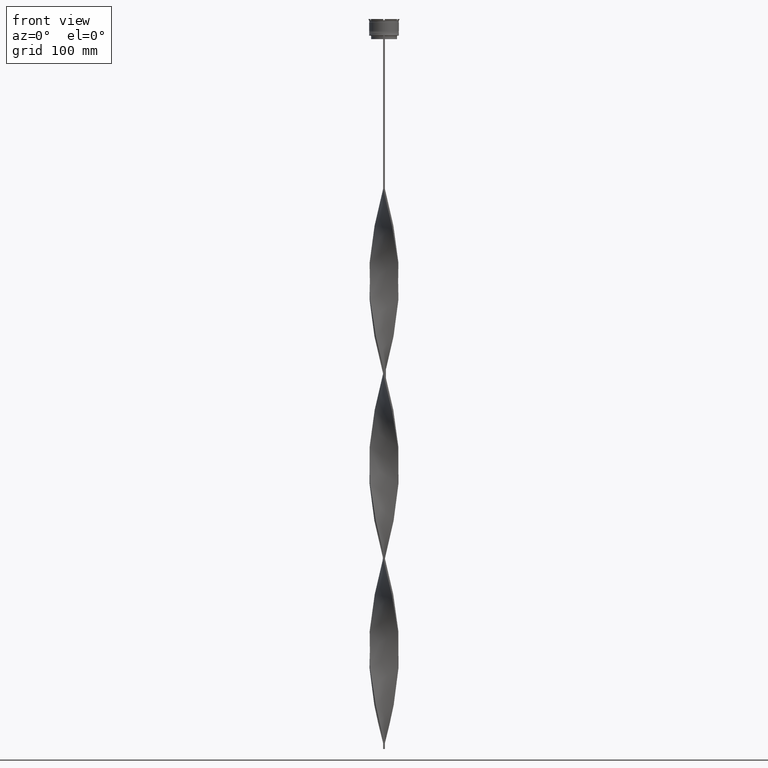
[diagram: clean part render]
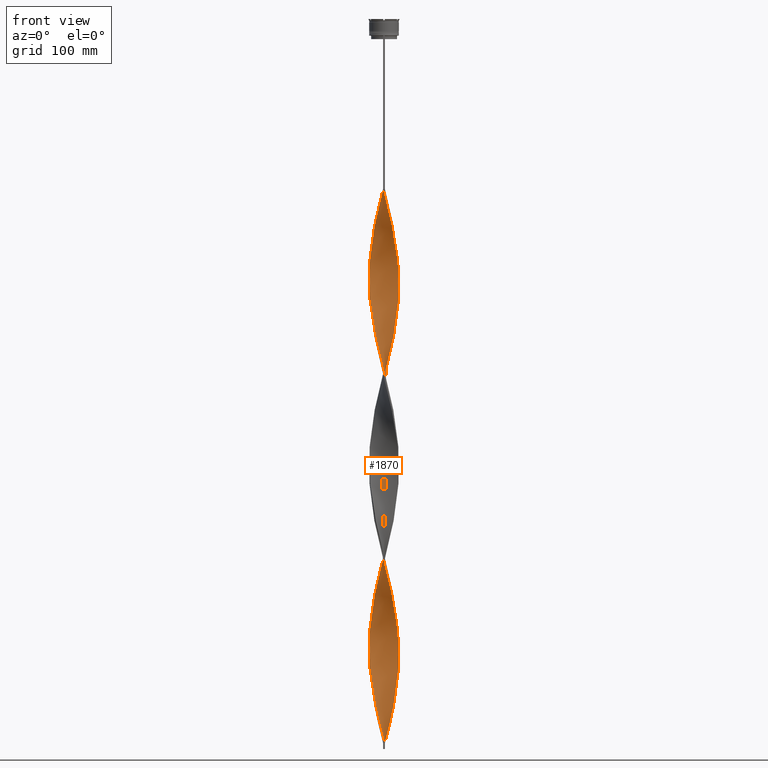
[diagram: same view with one face highlighted and labeled with its STEP entity id]
A machine part, front view. The second image highlights one B-rep face of the part: STEP entity #1870.
In plain terms, the highlighted face is a freeform B-spline surface patch.
Its self-contained STEP definition (entity closure, byte-faithful):
#10 = CARTESIAN_POINT ( 'NONE',  ( 6.740552907874696409, 10.55355136890620216, -422.6000000000000227 ) ) ;
#23 = CARTESIAN_POINT ( 'NONE',  ( -6.076579735155671180, 10.97763101221075743, -326.2933333333333508 ) ) ;
#34 = CARTESIAN_POINT ( 'NONE',  ( -12.11996919947063134, 3.149420042465478353, -515.8000000000000682 ) ) ;
#40 =( BOUNDED_CURVE ( )  B_SPLINE_CURVE ( 2, ( #3151, #3252, #1262, #4656, #1286, #2789, #3920, #560, #3549, #654, #3652, #2612, #3280, #4388, #2959, #1021, #4113, #3321, #2892, #3746, #1087, #699, #717, #4071, #2936, #2977, #2916, #2593, #1458, #2548, #1852, #1410, #4412, #340, #4829, #2526, #4459, #1069, #4090, #385, #3679, #4477, #2155, #288, #739, #4783, #4023, #2222, #1781, #2247, #3718, #1043, #1876, #359, #4757, #3349, #1825, #4048, #2201, #4435, #4853, #1481, #678, #1105, #2181, #317, #1386, #1805, #3303, #4807, #1432, #2575, #3698, #2320, #1131, #2373, #3818, #2295, #3397, #2713, #1573, #3053, #480, #456, #4553, #768, #1955, #3454, #4527, #428, #10, #3790, #4499, #1501, #2349, #3098, #2997, #1928, #1976, #4604, #3074, #91, #4577, #3843, #65, #1236, #2738, #4212, #1900, #1207, #1525, #1184, #2688, #817, #1554, #845, #3427, #2274, #4187, #3472, #34, #112, #2637, #1595, #4234, #865, #3865, #502, #3373, #4142, #3767, #405, #3025, #1158, #2664, #4166, #792, #939, #603, #2397, #1646, #4257, #528, #2445, #1703, #137, #2831, #1256, #3891, #2810, #2466 ),
 .UNSPECIFIED., .F., .F. ) 
 B_SPLINE_CURVE_WITH_KNOTS ( ( 3, 2, 2, 2, 2, 2, 2, 2, 2, 2, 2, 2, 2, 2, 2, 2, 2, 2, 2, 2, 2, 2, 2, 2, 2, 2, 2, 2, 2, 2, 2, 2, 2, 2, 2, 2, 2, 2, 2, 2, 2, 2, 2, 2, 2, 2, 2, 2, 2, 2, 2, 2, 2, 2, 2, 2, 2, 2, 2, 2, 2, 2, 2, 2, 2, 2, 2, 2, 2, 2, 2, 2, 2, 2, 2, 3 ),
 ( 0.000000000000000000, 0.01000000000000000021, 0.02000000000000000042, 0.02999999999999999889, 0.04000000000000000083, 0.05000000000000000971, 0.05999999999999999778, 0.07000000000000000666, 0.08000000000000000167, 0.09000000000000001055, 0.1000000000000000194, 0.1100000000000000006, 0.1199999999999999956, 0.1300000000000000044, 0.1400000000000000133, 0.1499999999999999944, 0.1600000000000000033, 0.1700000000000000122, 0.1800000000000000211, 0.1900000000000000300, 0.2000000000000000389, 0.2099999999999999922, 0.2200000000000000011, 0.2300000000000000100, 0.2399999999999999911, 0.2500000000000000000, 0.2600000000000000089, 0.2700000000000000178, 0.2800000000000000266, 0.2899999999999999800, 0.2999999999999999889, 0.3099999999999999978, 0.3200000000000000067, 0.3300000000000000155, 0.3400000000000000244, 0.3499999999999999223, 0.3600000000000000422, 0.3699999999999999400, 0.3800000000000000600, 0.3899999999999999578, 0.4000000000000000777, 0.4099999999999999756, 0.4199999999999999845, 0.4299999999999999933, 0.4400000000000000022, 0.4500000000000000111, 0.4600000000000000200, 0.4699999999999999734, 0.4799999999999999822, 0.4899999999999999911, 0.5000000000000000000, 0.5100000000000000089, 0.5200000000000000178, 0.5300000000000000266, 0.5400000000000000355, 0.5500000000000000444, 0.5600000000000000533, 0.5699999999999999512, 0.5799999999999999600, 0.5899999999999999689, 0.5999999999999999778, 0.6099999999999999867, 0.6199999999999999956, 0.6300000000000000044, 0.6400000000000000133, 0.6500000000000000222, 0.6600000000000000311, 0.6700000000000000400, 0.6800000000000000488, 0.6899999999999999467, 0.6999999999999998446, 0.7099999999999999645, 0.7200000000000000844, 0.7299999999999999822, 0.7399999999999998801, 0.7500000000000000000 ),
 .UNSPECIFIED. ) 
 CURVE ( )  GEOMETRIC_REPRESENTATION_ITEM ( )  RATIONAL_B_SPLINE_CURVE ( ( 1.000000000000000000, 0.9980267284282715590, 1.000000000000000000, 0.9980267284282715590, 1.000000000000000000, 0.9980267284282715590, 1.000000000000000000, 0.9980267284282715590, 1.000000000000000000, 0.9980267284282715590, 1.000000000000000000, 0.9980267284282715590, 1.000000000000000000, 0.9980267284282715590, 1.000000000000000000, 0.9980267284282715590, 1.000000000000000000, 0.9980267284282715590, 1.000000000000000000, 0.9980267284282715590, 1.000000000000000000, 0.9980267284282715590, 1.000000000000000000, 0.9980267284282715590, 1.000000000000000000, 0.9980267284282715590, 1.000000000000000000, 0.9980267284282715590, 1.000000000000000000, 0.9980267284282715590, 1.000000000000000000, 0.9980267284282715590, 1.000000000000000000, 0.9980267284282715590, 1.000000000000000000, 0.9980267284282715590, 1.000000000000000000, 0.9980267284282715590, 1.000000000000000000, 0.9980267284282715590, 1.000000000000000000, 0.9980267284282715590, 1.000000000000000000, 0.9980267284282715590, 1.000000000000000000, 0.9980267284282715590, 1.000000000000000000, 0.9980267284282715590, 1.000000000000000000, 0.9980267284282715590, 1.000000000000000000, 0.9980267284282715590, 1.000000000000000000, 0.9980267284282715590, 1.000000000000000000, 0.9980267284282715590, 1.000000000000000000, 0.9980267284282715590, 1.000000000000000000, 0.9980267284282715590, 1.000000000000000000, 0.9980267284282715590, 1.000000000000000000, 0.9980267284282715590, 1.000000000000000000, 0.9980267284282715590, 1.000000000000000000, 0.9980267284282715590, 1.000000000000000000, 0.9980267284282715590, 1.000000000000000000, 0.9980267284282715590, 1.000000000000000000, 0.9980267284282715590, 1.000000000000000000, 0.9980267284282715590, 1.000000000000000000, 0.9980267284282715590, 1.000000000000000000, 0.9980267284282715590, 1.000000000000000000, 0.9980267284282715590, 1.000000000000000000, 0.9980267284282715590, 1.000000000000000000, 0.9980267284282715590, 1.000000000000000000, 0.9980267284282715590, 1.000000000000000000, 0.9980267284282715590, 1.000000000000000000, 0.9980267284282715590, 1.000000000000000000, 0.9980267284282715590, 1.000000000000000000, 0.9980267284282715590, 1.000000000000000000, 0.9980267284282715590, 1.000000000000000000, 0.9980267284282715590, 1.000000000000000000, 0.9980267284282715590, 1.000000000000000000, 0.9980267284282715590, 1.000000000000000000, 0.9980267284282715590, 1.000000000000000000, 0.9980267284282715590, 1.000000000000000000, 0.9980267284282715590, 1.000000000000000000, 0.9980267284282715590, 1.000000000000000000, 0.9980267284282715590, 1.000000000000000000, 0.9980267284282715590, 1.000000000000000000, 0.9980267284282715590, 1.000000000000000000, 0.9980267284282715590, 1.000000000000000000, 0.9980267284282715590, 1.000000000000000000, 0.9980267284282715590, 1.000000000000000000, 0.9980267284282715590, 1.000000000000000000, 0.9980267284282715590, 1.000000000000000000, 0.9980267284282715590, 1.000000000000000000, 0.9980267284282715590, 1.000000000000000000, 0.9980267284282715590, 1.000000000000000000, 0.9980267284282715590, 1.000000000000000000, 0.9980267284282715590, 1.000000000000000000, 0.9980267284282715590, 1.000000000000000000, 0.9980267284282715590, 1.000000000000000000, 0.9980267284282715590, 1.000000000000000000, 0.9980267284282715590, 1.000000000000000000, 0.9980267284282715590, 1.000000000000000000, 0.9980267284282715590, 1.000000000000000000 ) ) 
 REPRESENTATION_ITEM ( '' )  );
#43 = CARTESIAN_POINT ( 'NONE',  ( 10.95596916500943685, 6.064588993110950454, -559.2933333333334076 ) ) ;
#52 = CARTESIAN_POINT ( 'NONE',  ( 5.298889272974660614, 11.34611265908963595, -279.6933333333333280 ) ) ;
#65 = CARTESIAN_POINT ( 'NONE',  ( -3.835060960407158159, 11.92077209873424870, -466.0933333333333621 ) ) ;
#72 = CARTESIAN_POINT ( 'NONE',  ( 4.585052370405611200, 11.67949051451277143, -593.4666666666666970 ) ) ;
#80 = CARTESIAN_POINT ( 'NONE',  ( 3.085069550408700678, 12.16205368295573130, -599.6799999999999500 ) ) ;
#82 = CARTESIAN_POINT ( 'NONE',  ( -0.8225793935679430735, -12.49543369160420347, -602.7866666666667470 ) ) ;
#84 = VERTEX_POINT ( 'NONE', #4305 ) ;
#91 = CARTESIAN_POINT ( 'NONE',  ( -1.536433340670621872, 12.45281399955976553, -456.7733333333334258 ) ) ;
#92 = CARTESIAN_POINT ( 'NONE',  ( 12.31811391348432494, -2.386896213156295410, -363.5733333333334372 ) ) ;
#98 = CARTESIAN_POINT ( 'NONE',  ( 7.954078399437126023, 9.671873490467488566, -577.9333333333333940 ) ) ;
#112 = CARTESIAN_POINT ( 'NONE',  ( -12.31811391348432316, 2.386896213156299407, -518.9066666666666379 ) ) ;
#113 = CARTESIAN_POINT ( 'NONE',  ( 7.954078399437126912, -9.671873490467486789, -329.4000000000000341 ) ) ;
#128 = CARTESIAN_POINT ( 'NONE',  ( -2.382186218714212433, -12.29380692948152820, -596.5733333333333803 ) ) ;
#137 = CARTESIAN_POINT ( 'NONE',  ( -3.155646990963152820, -12.14393247619489813, -593.4666666666666970 ) ) ;
#138 = CARTESIAN_POINT ( 'NONE',  ( 11.33752076354115879, -5.375297838653132487, -351.1466666666667606 ) ) ;
#163 = CARTESIAN_POINT ( 'NONE',  ( 6.076579735155664963, 10.97763101221075921, -425.7066666666667629 ) ) ;
#171 = CARTESIAN_POINT ( 'NONE',  ( 8.010112353542551134, -9.625518172214160728, -490.9466666666667152 ) ) ;
#186 = CARTESIAN_POINT ( 'NONE',  ( -3.085069550408701566, 12.16205368295573130, -462.9866666666666788 ) ) ;
#193 = CARTESIAN_POINT ( 'NONE',  ( 7.345575697064967713, 10.17230168627752107, -581.0400000000000773 ) ) ;
#201 = CARTESIAN_POINT ( 'NONE',  ( 10.15222897254094292, -7.331080881363969404, -192.7066666666667061 ) ) ;
#219 = CARTESIAN_POINT ( 'NONE',  ( 7.404526080593739401, -10.12947172560163800, -487.8400000000000887 ) ) ;
#228 = CARTESIAN_POINT ( 'NONE',  ( 3.155646990963155929, -12.14393247619489813, -158.5333333333333883 ) ) ;
#230 = EDGE_CURVE ( 'NONE', #3016, #2737, #1227, .T. ) ;
#243 = CARTESIAN_POINT ( 'NONE',  ( -3.155646990963153264, -12.14393247619489813, -282.8000000000000682 ) ) ;
#246 = CARTESIAN_POINT ( 'NONE',  ( -10.99100368715144427, 6.000861433912916709, -354.2533333333333871 ) ) ;
#253 = CARTESIAN_POINT ( 'NONE',  ( 5.298889272974660614, 11.34611265908963595, -279.6933333333333280 ) ) ;
#267 = CARTESIAN_POINT ( 'NONE',  ( -11.94434152831508911, -3.842643539664265084, -233.0933333333333906 ) ) ;
#270 = CARTESIAN_POINT ( 'NONE',  ( -11.65644370790820794, 4.576004816908209705, -360.4666666666666970 ) ) ;
#275 = CARTESIAN_POINT ( 'NONE',  ( 8.010112353542551134, -9.625518172214160728, -180.2800000000000296 ) ) ;
#277 = CARTESIAN_POINT ( 'NONE',  ( 4.585052370405611200, 11.67949051451277143, -282.8000000000000682 ) ) ;
#288 = CARTESIAN_POINT ( 'NONE',  ( -4.652802097321415253, -11.65266650003840887, -276.5866666666667584 ) ) ;
#291 = CARTESIAN_POINT ( 'NONE',  ( -7.404526080593735848, -10.12947172560163978, -264.1600000000000819 ) ) ;
#298 = CARTESIAN_POINT ( 'NONE',  ( -12.52242699500038015, -0.03636144779521806314, -379.1066666666666833 ) ) ;
#307 = CARTESIAN_POINT ( 'NONE',  ( 10.95596916500943685, 6.064588993110950454, -248.6266666666666936 ) ) ;
#309 = CARTESIAN_POINT ( 'NONE',  ( 12.42824121570641083, -1.533401540437619781, -217.5600000000000307 ) ) ;
#317 = CARTESIAN_POINT ( 'NONE',  ( 10.57441756647771669, -6.753880147568765757, -344.9333333333334508 ) ) ;
#323 = CARTESIAN_POINT ( 'NONE',  ( -10.57441756647771136, -6.753880147568771086, -407.0666666666666629 ) ) ;
#330 = CARTESIAN_POINT ( 'NONE',  ( -9.644549487540052368, -8.025949731984796998, -413.2800000000000864 ) ) ;
#332 = CARTESIAN_POINT ( 'NONE',  ( 12.52471466338928074, -0.7514828798033543755, -220.6666666666667140 ) ) ;
#340 = CARTESIAN_POINT ( 'NONE',  ( -10.61346148680154933, -6.692356773673695081, -245.5200000000000387 ) ) ;
#350 = CARTESIAN_POINT ( 'NONE',  ( 0.03643334067062224679, -12.54718600044023979, -456.7733333333334258 ) ) ;
#359 = CARTESIAN_POINT ( 'NONE',  ( 3.085069550408703343, -12.16205368295572953, -307.6533333333333644 ) ) ;
#366 = CARTESIAN_POINT ( 'NONE',  ( 12.52471466338928074, -0.7514828798033543755, -531.3333333333335986 ) ) ;
#373 = CARTESIAN_POINT ( 'NONE',  ( -12.13805464816931767, 3.078981870368074247, -366.6800000000000068 ) ) ;
#385 = CARTESIAN_POINT ( 'NONE',  ( -7.404526080593735848, -10.12947172560163978, -264.1600000000000819 ) ) ;
#390 = CARTESIAN_POINT ( 'NONE',  ( 6.740552907874703514, -10.55355136890619860, -484.7333333333333485 ) ) ;
#397 = CARTESIAN_POINT ( 'NONE',  ( -10.95596916500943685, -6.064588993110948678, -403.9600000000000364 ) ) ;
#405 = CARTESIAN_POINT ( 'NONE',  ( -11.36854588750133388, -5.309366094152152549, -549.9733333333334713 ) ) ;
#417 = CARTESIAN_POINT ( 'NONE',  ( -12.52242699500038015, -0.03636144779521806314, -379.1066666666666833 ) ) ;
#428 = CARTESIAN_POINT ( 'NONE',  ( 7.404526080593737625, 10.12947172560163978, -419.4933333333333962 ) ) ;
#437 = CARTESIAN_POINT ( 'NONE',  ( 7.345575697064967713, 10.17230168627752107, -581.0400000000000773 ) ) ;
#445 = CARTESIAN_POINT ( 'NONE',  ( -7.954078399437124247, 9.671873490467490342, -174.0666666666666629 ) ) ;
#447 = CARTESIAN_POINT ( 'NONE',  ( -3.155646990963153264, -12.14393247619489813, -593.4666666666666970 ) ) ;
#456 = CARTESIAN_POINT ( 'NONE',  ( 10.61346148680154755, 6.692356773673698633, -400.8533333333334099 ) ) ;
#464 = CARTESIAN_POINT ( 'NONE',  ( 12.11996919947063134, 3.149420042465480130, -546.8666666666666742 ) ) ;
#472 = CARTESIAN_POINT ( 'NONE',  ( -4.652802097321415253, -11.65266650003840887, -587.2533333333335577 ) ) ;
#480 = CARTESIAN_POINT ( 'NONE',  ( 10.99100368715144072, 6.000861433912922926, -397.7466666666666697 ) ) ;
#481 = CARTESIAN_POINT ( 'NONE',  ( -6.679150936304338870, 10.59251824497200900, -478.5200000000000387 ) ) ;
#493 = CARTESIAN_POINT ( 'NONE',  ( -12.52013932661148665, 0.8242057753937841458, -525.1200000000001182 ) ) ;
#499 = CARTESIAN_POINT ( 'NONE',  ( 6.076579735155671180, -10.97763101221075743, -170.9600000000000364 ) ) ;
#502 = CARTESIAN_POINT ( 'NONE',  ( -12.33176776802354446, -2.315320201071886963, -537.5466666666667379 ) ) ;
#503 = CARTESIAN_POINT ( 'NONE',  ( 12.52242699500038015, -0.03636144779521166548, -372.8933333333333735 ) ) ;
#517 = CARTESIAN_POINT ( 'NONE',  ( -3.904224544142283815, -11.89829948811665261, -590.3600000000000136 ) ) ;
#528 = CARTESIAN_POINT ( 'NONE',  ( -5.364690916238543217, -11.31514875612458226, -584.1466666666666470 ) ) ;
#530 = CARTESIAN_POINT ( 'NONE',  ( 11.92182448545694129, -3.911943871774655523, -357.3600000000001273 ) ) ;
#539 = CARTESIAN_POINT ( 'NONE',  ( 12.11996919947063134, 3.149420042465480130, -546.8666666666666742 ) ) ;
#555 = CARTESIAN_POINT ( 'NONE',  ( -1.536433340670622094, 12.45281399955976553, -456.7733333333334258 ) ) ;
#560 = CARTESIAN_POINT ( 'NONE',  ( -6.012726175543711804, 11.01273480366649871, -164.7466666666666981 ) ) ;
#563 = CARTESIAN_POINT ( 'NONE',  ( 10.10948352700888364, 7.389914939776780933, -565.5066666666666606 ) ) ;
#569 = DIRECTION ( 'NONE',  ( 0.000000000000000000, 1.000000000000000000, 0.000000000000000000 ) ) ;
#570 = CARTESIAN_POINT ( 'NONE',  ( 12.11996919947063134, 3.149420042465480130, -236.2000000000000171 ) ) ;
#576 = CARTESIAN_POINT ( 'NONE',  ( 10.95596916500943863, -6.064588993110942461, -348.0400000000000205 ) ) ;
#585 = CARTESIAN_POINT ( 'NONE',  ( 9.103565294674666575, 8.598697513321130970, -571.7200000000000273 ) ) ;
#588 = ORIENTED_EDGE ( 'NONE', *, *, #3249, .F. ) ;
#595 = CARTESIAN_POINT ( 'NONE',  ( -0.7499999999999997780, -12.50000000000000000, -143.0000000000000284 ) ) ;
#596 = CARTESIAN_POINT ( 'NONE',  ( 1.608725446465268050, -12.44368138276816538, -152.3200000000000500 ) ) ;
#603 = CARTESIAN_POINT ( 'NONE',  ( -8.010112353542547581, -9.625518172214162504, -571.7200000000000273 ) ) ;
#613 = CARTESIAN_POINT ( 'NONE',  ( 12.31811391348432316, 2.386896213156300295, -543.7599999999999909 ) ) ;
#623 = CARTESIAN_POINT ( 'NONE',  ( 3.904224544142286479, -11.89829948811665083, -161.6400000000000148 ) ) ;
#626 = CARTESIAN_POINT ( 'NONE',  ( 11.36854588750133388, -5.309366094152150772, -202.0266666666667277 ) ) ;
#638 = CARTESIAN_POINT ( 'NONE',  ( -12.52013932661148665, 0.8242057753937841458, -214.4533333333333758 ) ) ;
#646 = CARTESIAN_POINT ( 'NONE',  ( -8.615698626491365530, 9.121564618826679904, -338.7200000000000273 ) ) ;
#654 = CARTESIAN_POINT ( 'NONE',  ( -7.345575697064967713, 10.17230168627752107, -170.9600000000000364 ) ) ;
#656 = CARTESIAN_POINT ( 'NONE',  ( -8.010112353542547581, -9.625518172214162504, -261.0533333333333417 ) ) ;
#659 = CARTESIAN_POINT ( 'NONE',  ( 6.076579735155671180, -10.97763101221075743, -481.6266666666667788 ) ) ;
#666 = CARTESIAN_POINT ( 'NONE',  ( 8.010112353542551134, -9.625518172214160728, -180.2800000000000296 ) ) ;
#678 = CARTESIAN_POINT ( 'NONE',  ( 9.103565294674670128, -8.598697513321129193, -335.6133333333334008 ) ) ;
#683 = CARTESIAN_POINT ( 'NONE',  ( 0.8225793935679449609, -12.49543369160420347, -459.8799999999999955 ) ) ;
#691 = CARTESIAN_POINT ( 'NONE',  ( -12.11996919947063311, -3.149420042465475689, -391.5333333333334167 ) ) ;
#693 = CARTESIAN_POINT ( 'NONE',  ( 9.103565294674666575, 8.598697513321130970, -261.0533333333333417 ) ) ;
#699 = CARTESIAN_POINT ( 'NONE',  ( -12.31811391348432316, 2.386896213156299407, -208.2400000000000659 ) ) ;
#704 = CARTESIAN_POINT ( 'NONE',  ( -12.42824121570641083, 1.533401540437618671, -372.8933333333333735 ) ) ;
#709 = CARTESIAN_POINT ( 'NONE',  ( -1.536433340670620762, -12.45281399955976553, -450.5600000000000023 ) ) ;
#711 = CARTESIAN_POINT ( 'NONE',  ( -3.904224544142290476, 11.89829948811664906, -316.9733333333333576 ) ) ;
#717 = CARTESIAN_POINT ( 'NONE',  ( -12.41912662004790313, 1.605550994275040111, -211.3466666666666924 ) ) ;
#723 = CARTESIAN_POINT ( 'NONE',  ( -1.536433340670620540, -12.45281399955976553, -450.5600000000000023 ) ) ;
#729 = CARTESIAN_POINT ( 'NONE',  ( -4.652802097321417030, 11.65266650003840709, -320.0800000000000978 ) ) ;
#739 = CARTESIAN_POINT ( 'NONE',  ( -3.904224544142283815, -11.89829948811665261, -279.6933333333333280 ) ) ;
#754 = CARTESIAN_POINT ( 'NONE',  ( -12.31811391348432316, -2.386896213156301183, -388.4266666666667334 ) ) ;
#762 =( BOUNDED_SURFACE ( )  B_SPLINE_SURFACE ( 1, 2, ( 
 ( #3666, #3988, #933, #596, #4719, #228, #623, #1421, #2880, #1350, #2849, #2118, #275, #1008, #3593, #2167, #201, #3238, #1767, #3615, #2514, #2534, #2460, #2142, #4012, #1720, #1400, #956, #4324, #3638, #570, #3266, #4400, #1031, #307, #1795, #3293, #4796, #2066, #3957, #3194, #2947, #2263, #1120, #52, #4865, #1147, #3415, #1471, #4515, #3362, #2235, #2927, #4843, #4422, #1839, #4060, #729, #3710, #23, #4153, #3336, #1514, #780, #2627, #2969, #4130, #1493, #4104, #1055, #3734, #2586, #373, #2561, #2284, #1866, #417, #3758, #2653, #754, #691, #2191, #2989, #3689, #397, #4490, #1889, #330, #3014, #3387, #3779, #1913, #1816, #3312, #4816, #1444, #4447, #1080, #4081, #709, #2214, #350, #4470, #1097, #2605, #1197, #4542, #1714, #3553, #926, #4659, #219, #171, #1543, #3154, #1566, #4177, #3947, #1344, #2454, #3923, #3529, #950, #1290, #1655, #1170, #3181, #2792, #4688, #613, #539, #2432, #2339, #2819, #4291, #3208, #563, #2057, #585, #4713, #2109, #193, #1683, #1322, #1946, #3580, #2676, #80, #3608, #4318, #2842 ),
 ( #2083, #4340, #971, #2476, #3041, #3975, #3063, #805, #2308, #3806, #445, #3445, #4566, #2701, #4202, #834, #3899, #2036, #3256, #2529, #4414, #2133, #1389, #638, #4026, #4759, #1045, #1024, #3631, #267, #1756, #2158, #4391, #4003, #4785, #4735, #2895, #3656, #656, #291, #3282, #2506, #1784, #1412, #2918, #243, #1735, #3230, #1366, #2867, #4365, #999, #917, #1624, #2425, #3892, #3498, #3866, #3100, #2398, #113, #4283, #3147, #2074, #2027, #3172, #576, #138, #1673, #530, #4258, #92, #2000, #1574, #503, #1208, #2763, #866, #2048, #1311, #3123, #3545, #2811, #4651, #4628, #1281, #3520, #1257, #3075, #888, #4605, #163, #4579, #4310, #1647, #2446, #3915, #4679, #2783, #2715, #4213, #555, #846, #186, #941, #3938, #2350, #3844, #481, #1977, #3473, #1597, #1237, #2739, #4235, #2374, #3781, #3808, #2731, #859, #1916, #3858, #3464, #493, #1271, #1199, #1586, #3065, #3486, #1969, #4270, #2366, #2704, #4204, #836, #3114, #4227, #3447, #2015, #1546, #3088, #4620, #4594, #472, #517, #447, #128, #1989, #82, #4249, #1949 ) ),
 .UNSPECIFIED., .F., .F., .F. ) 
 B_SPLINE_SURFACE_WITH_KNOTS ( ( 2, 2 ),
 ( 3, 2, 2, 2, 2, 2, 2, 2, 2, 2, 2, 2, 2, 2, 2, 2, 2, 2, 2, 2, 2, 2, 2, 2, 2, 2, 2, 2, 2, 2, 2, 2, 2, 2, 2, 2, 2, 2, 2, 2, 2, 2, 2, 2, 2, 2, 2, 2, 2, 2, 2, 2, 2, 2, 2, 2, 2, 2, 2, 2, 2, 2, 2, 2, 2, 2, 2, 2, 2, 2, 2, 2, 2, 2, 2, 3 ),
 ( 0.000000000000000000, 1.000000000000000000 ),
 ( 0.000000000000000000, 0.01000000000000000021, 0.02000000000000000042, 0.02999999999999999889, 0.04000000000000000083, 0.05000000000000000278, 0.05999999999999999778, 0.07000000000000000666, 0.08000000000000000167, 0.08999999999999999667, 0.1000000000000000056, 0.1100000000000000006, 0.1199999999999999956, 0.1300000000000000044, 0.1400000000000000133, 0.1499999999999999944, 0.1600000000000000033, 0.1700000000000000122, 0.1799999999999999933, 0.1900000000000000022, 0.2000000000000000111, 0.2099999999999999922, 0.2200000000000000011, 0.2300000000000000100, 0.2399999999999999911, 0.2500000000000000000, 0.2600000000000000089, 0.2700000000000000178, 0.2800000000000000266, 0.2899999999999999800, 0.2999999999999999889, 0.3099999999999999978, 0.3200000000000000067, 0.3300000000000000155, 0.3400000000000000244, 0.3499999999999999778, 0.3599999999999999867, 0.3699999999999999956, 0.3800000000000000044, 0.3900000000000000133, 0.4000000000000000222, 0.4099999999999999756, 0.4199999999999999845, 0.4299999999999999933, 0.4400000000000000022, 0.4500000000000000111, 0.4600000000000000200, 0.4699999999999999734, 0.4799999999999999822, 0.4899999999999999911, 0.5000000000000000000, 0.5100000000000000089, 0.5200000000000000178, 0.5300000000000000266, 0.5400000000000000355, 0.5500000000000000444, 0.5600000000000000533, 0.5699999999999999512, 0.5799999999999999600, 0.5899999999999999689, 0.5999999999999999778, 0.6099999999999999867, 0.6199999999999999956, 0.6300000000000000044, 0.6400000000000000133, 0.6500000000000000222, 0.6600000000000000311, 0.6700000000000000400, 0.6800000000000000488, 0.6899999999999999467, 0.6999999999999999556, 0.7099999999999999645, 0.7199999999999999734, 0.7299999999999999822, 0.7399999999999999911, 0.7500000000000000000 ),
 .UNSPECIFIED. ) 
 GEOMETRIC_REPRESENTATION_ITEM ( )  RATIONAL_B_SPLINE_SURFACE ( (
 ( 1.000000000000000000, 0.9980267284282715590, 1.000000000000000000, 0.9980267284282715590, 1.000000000000000000, 0.9980267284282715590, 1.000000000000000000, 0.9980267284282715590, 1.000000000000000000, 0.9980267284282715590, 1.000000000000000000, 0.9980267284282715590, 1.000000000000000000, 0.9980267284282715590, 1.000000000000000000, 0.9980267284282715590, 1.000000000000000000, 0.9980267284282715590, 1.000000000000000000, 0.9980267284282715590, 1.000000000000000000, 0.9980267284282715590, 1.000000000000000000, 0.9980267284282715590, 1.000000000000000000, 0.9980267284282715590, 1.000000000000000000, 0.9980267284282715590, 1.000000000000000000, 0.9980267284282715590, 1.000000000000000000, 0.9980267284282715590, 1.000000000000000000, 0.9980267284282715590, 1.000000000000000000, 0.9980267284282715590, 1.000000000000000000, 0.9980267284282715590, 1.000000000000000000, 0.9980267284282715590, 1.000000000000000000, 0.9980267284282715590, 1.000000000000000000, 0.9980267284282715590, 1.000000000000000000, 0.9980267284282715590, 1.000000000000000000, 0.9980267284282715590, 1.000000000000000000, 0.9980267284282715590, 1.000000000000000000, 0.9980267284282715590, 1.000000000000000000, 0.9980267284282715590, 1.000000000000000000, 0.9980267284282715590, 1.000000000000000000, 0.9980267284282715590, 1.000000000000000000, 0.9980267284282715590, 1.000000000000000000, 0.9980267284282715590, 1.000000000000000000, 0.9980267284282715590, 1.000000000000000000, 0.9980267284282715590, 1.000000000000000000, 0.9980267284282715590, 1.000000000000000000, 0.9980267284282715590, 1.000000000000000000, 0.9980267284282715590, 1.000000000000000000, 0.9980267284282715590, 1.000000000000000000, 0.9980267284282715590, 1.000000000000000000, 0.9980267284282715590, 1.000000000000000000, 0.9980267284282715590, 1.000000000000000000, 0.9980267284282715590, 1.000000000000000000, 0.9980267284282715590, 1.000000000000000000, 0.9980267284282715590, 1.000000000000000000, 0.9980267284282715590, 1.000000000000000000, 0.9980267284282715590, 1.000000000000000000, 0.9980267284282715590, 1.000000000000000000, 0.9980267284282715590, 1.000000000000000000, 0.9980267284282715590, 1.000000000000000000, 0.9980267284282715590, 1.000000000000000000, 0.9980267284282715590, 1.000000000000000000, 0.9980267284282715590, 1.000000000000000000, 0.9980267284282715590, 1.000000000000000000, 0.9980267284282715590, 1.000000000000000000, 0.9980267284282715590, 1.000000000000000000, 0.9980267284282715590, 1.000000000000000000, 0.9980267284282715590, 1.000000000000000000, 0.9980267284282715590, 1.000000000000000000, 0.9980267284282715590, 1.000000000000000000, 0.9980267284282715590, 1.000000000000000000, 0.9980267284282715590, 1.000000000000000000, 0.9980267284282715590, 1.000000000000000000, 0.9980267284282715590, 1.000000000000000000, 0.9980267284282715590, 1.000000000000000000, 0.9980267284282715590, 1.000000000000000000, 0.9980267284282715590, 1.000000000000000000, 0.9980267284282715590, 1.000000000000000000, 0.9980267284282715590, 1.000000000000000000, 0.9980267284282715590, 1.000000000000000000, 0.9980267284282715590, 1.000000000000000000, 0.9980267284282715590, 1.000000000000000000, 0.9980267284282715590, 1.000000000000000000, 0.9980267284282715590, 1.000000000000000000, 0.9980267284282715590, 1.000000000000000000, 0.9980267284282715590, 1.000000000000000000, 0.9980267284282715590, 1.000000000000000000),
 ( 1.000000000000000000, 0.9980267284282715590, 1.000000000000000000, 0.9980267284282715590, 1.000000000000000000, 0.9980267284282715590, 1.000000000000000000, 0.9980267284282715590, 1.000000000000000000, 0.9980267284282715590, 1.000000000000000000, 0.9980267284282715590, 1.000000000000000000, 0.9980267284282715590, 1.000000000000000000, 0.9980267284282715590, 1.000000000000000000, 0.9980267284282715590, 1.000000000000000000, 0.9980267284282715590, 1.000000000000000000, 0.9980267284282715590, 1.000000000000000000, 0.9980267284282715590, 1.000000000000000000, 0.9980267284282715590, 1.000000000000000000, 0.9980267284282715590, 1.000000000000000000, 0.9980267284282715590, 1.000000000000000000, 0.9980267284282715590, 1.000000000000000000, 0.9980267284282715590, 1.000000000000000000, 0.9980267284282715590, 1.000000000000000000, 0.9980267284282715590, 1.000000000000000000, 0.9980267284282715590, 1.000000000000000000, 0.9980267284282715590, 1.000000000000000000, 0.9980267284282715590, 1.000000000000000000, 0.9980267284282715590, 1.000000000000000000, 0.9980267284282715590, 1.000000000000000000, 0.9980267284282715590, 1.000000000000000000, 0.9980267284282715590, 1.000000000000000000, 0.9980267284282715590, 1.000000000000000000, 0.9980267284282715590, 1.000000000000000000, 0.9980267284282715590, 1.000000000000000000, 0.9980267284282715590, 1.000000000000000000, 0.9980267284282715590, 1.000000000000000000, 0.9980267284282715590, 1.000000000000000000, 0.9980267284282715590, 1.000000000000000000, 0.9980267284282715590, 1.000000000000000000, 0.9980267284282715590, 1.000000000000000000, 0.9980267284282715590, 1.000000000000000000, 0.9980267284282715590, 1.000000000000000000, 0.9980267284282715590, 1.000000000000000000, 0.9980267284282715590, 1.000000000000000000, 0.9980267284282715590, 1.000000000000000000, 0.9980267284282715590, 1.000000000000000000, 0.9980267284282715590, 1.000000000000000000, 0.9980267284282715590, 1.000000000000000000, 0.9980267284282715590, 1.000000000000000000, 0.9980267284282715590, 1.000000000000000000, 0.9980267284282715590, 1.000000000000000000, 0.9980267284282715590, 1.000000000000000000, 0.9980267284282715590, 1.000000000000000000, 0.9980267284282715590, 1.000000000000000000, 0.9980267284282715590, 1.000000000000000000, 0.9980267284282715590, 1.000000000000000000, 0.9980267284282715590, 1.000000000000000000, 0.9980267284282715590, 1.000000000000000000, 0.9980267284282715590, 1.000000000000000000, 0.9980267284282715590, 1.000000000000000000, 0.9980267284282715590, 1.000000000000000000, 0.9980267284282715590, 1.000000000000000000, 0.9980267284282715590, 1.000000000000000000, 0.9980267284282715590, 1.000000000000000000, 0.9980267284282715590, 1.000000000000000000, 0.9980267284282715590, 1.000000000000000000, 0.9980267284282715590, 1.000000000000000000, 0.9980267284282715590, 1.000000000000000000, 0.9980267284282715590, 1.000000000000000000, 0.9980267284282715590, 1.000000000000000000, 0.9980267284282715590, 1.000000000000000000, 0.9980267284282715590, 1.000000000000000000, 0.9980267284282715590, 1.000000000000000000, 0.9980267284282715590, 1.000000000000000000, 0.9980267284282715590, 1.000000000000000000, 0.9980267284282715590, 1.000000000000000000, 0.9980267284282715590, 1.000000000000000000, 0.9980267284282715590, 1.000000000000000000, 0.9980267284282715590, 1.000000000000000000, 0.9980267284282715590, 1.000000000000000000) ) ) 
 REPRESENTATION_ITEM ( '' )  SURFACE ( )  );
#768 = CARTESIAN_POINT ( 'NONE',  ( 9.690996458280331183, 7.969804989054253497, -407.0666666666666629 ) ) ;
#773 = CARTESIAN_POINT ( 'NONE',  ( 8.615698626491365530, -9.121564618826679904, -494.0533333333333985 ) ) ;
#780 = CARTESIAN_POINT ( 'NONE',  ( -8.615698626491365530, 9.121564618826679904, -338.7200000000000273 ) ) ;
#792 = CARTESIAN_POINT ( 'NONE',  ( -9.153347542385850133, -8.545684803940464036, -565.5066666666666606 ) ) ;
#800 = CARTESIAN_POINT ( 'NONE',  ( 12.52242699500038015, 0.03636144779521405246, -534.4400000000000546 ) ) ;
#805 = CARTESIAN_POINT ( 'NONE',  ( -6.012726175543712692, 11.01273480366649871, -164.7466666666667265 ) ) ;
#817 = CARTESIAN_POINT ( 'NONE',  ( -9.644549487540052368, 8.025949731984796998, -494.0533333333333985 ) ) ;
#834 = CARTESIAN_POINT ( 'NONE',  ( -10.57441756647771847, 6.753880147568762204, -189.6000000000000227 ) ) ;
#836 = CARTESIAN_POINT ( 'NONE',  ( -10.15222897254093937, -7.331080881363972068, -559.2933333333334076 ) ) ;
#845 = CARTESIAN_POINT ( 'NONE',  ( -10.57441756647771847, 6.753880147568762204, -500.2666666666666515 ) ) ;
#846 = CARTESIAN_POINT ( 'NONE',  ( -2.310751445539661386, 12.30743384125774575, -459.8799999999999955 ) ) ;
#859 = CARTESIAN_POINT ( 'NONE',  ( -11.92182448545694129, 3.911943871774655523, -512.6933333333333849 ) ) ;
#865 = CARTESIAN_POINT ( 'NONE',  ( -12.52471466338928074, -0.7514828798033584834, -531.3333333333335986 ) ) ;
#866 = CARTESIAN_POINT ( 'NONE',  ( 12.33176776802354802, 2.315320201071885631, -382.2133333333333667 ) ) ;
#888 = CARTESIAN_POINT ( 'NONE',  ( 7.404526080593737625, 10.12947172560163978, -419.4933333333333394 ) ) ;
#917 = CARTESIAN_POINT ( 'NONE',  ( 2.310751445539661830, -12.30743384125774575, -304.5466666666666811 ) ) ;
#926 = CARTESIAN_POINT ( 'NONE',  ( 6.076579735155670292, -10.97763101221075921, -481.6266666666667788 ) ) ;
#933 = CARTESIAN_POINT ( 'NONE',  ( 0.8225793935679449609, -12.49543369160420347, -149.2133333333333383 ) ) ;
#939 = CARTESIAN_POINT ( 'NONE',  ( -8.615698626491363754, -9.121564618826681681, -568.6133333333334576 ) ) ;
#941 = CARTESIAN_POINT ( 'NONE',  ( -3.835060960407158159, 11.92077209873424870, -466.0933333333333621 ) ) ;
#944 = VERTEX_POINT ( 'NONE', #3774 ) ;
#950 = CARTESIAN_POINT ( 'NONE',  ( 12.13805464816931767, -3.078981870368072915, -522.0133333333334349 ) ) ;
#956 = CARTESIAN_POINT ( 'NONE',  ( 12.52013932661148488, 0.8242057753937857001, -226.8800000000000523 ) ) ;
#958 = CARTESIAN_POINT ( 'NONE',  ( 1.608725446465268050, -12.44368138276816538, -152.3200000000000500 ) ) ;
#971 = CARTESIAN_POINT ( 'NONE',  ( -2.310751445539661386, 12.30743384125774575, -149.2133333333333383 ) ) ;
#999 = CARTESIAN_POINT ( 'NONE',  ( 1.536433340670621872, -12.45281399955976553, -301.4400000000000546 ) ) ;
#1008 = CARTESIAN_POINT ( 'NONE',  ( 8.615698626491365530, -9.121564618826679904, -183.3866666666666845 ) ) ;
#1011 = CARTESIAN_POINT ( 'NONE',  ( 12.52013932661148310, 0.8242057753937857001, -226.8800000000000523 ) ) ;
#1021 = CARTESIAN_POINT ( 'NONE',  ( -10.57441756647771847, 6.753880147568762204, -189.6000000000000227 ) ) ;
#1024 = CARTESIAN_POINT ( 'NONE',  ( -12.33176776802354624, -2.315320201071887407, -226.8800000000000523 ) ) ;
#1031 = CARTESIAN_POINT ( 'NONE',  ( 11.33752076354115701, 5.375297838653134264, -245.5200000000000387 ) ) ;
#1034 = CARTESIAN_POINT ( 'NONE',  ( 6.012726175543709140, 11.01273480366650048, -276.5866666666667584 ) ) ;
#1043 = CARTESIAN_POINT ( 'NONE',  ( 1.536433340670621650, -12.45281399955976553, -301.4400000000000546 ) ) ;
#1045 = CARTESIAN_POINT ( 'NONE',  ( -12.42824121570641083, -1.533401540437621113, -223.7733333333333405 ) ) ;
#1047 = CARTESIAN_POINT ( 'NONE',  ( 0.03643334067062224679, -12.54718600044023979, -456.7733333333334258 ) ) ;
#1050 = ORIENTED_EDGE ( 'NONE', *, *, #3366, .T. ) ;
#1055 = CARTESIAN_POINT ( 'NONE',  ( -11.36854588750133388, 5.309366094152150772, -357.3600000000001273 ) ) ;
#1057 = CARTESIAN_POINT ( 'NONE',  ( 12.33176776802354624, -2.315320201071885631, -214.4533333333333758 ) ) ;
#1069 = CARTESIAN_POINT ( 'NONE',  ( -8.615698626491363754, -9.121564618826681681, -257.9466666666666583 ) ) ;
#1080 = CARTESIAN_POINT ( 'NONE',  ( -3.085069550408702010, -12.16205368295573130, -444.3466666666667493 ) ) ;
#1087 = CARTESIAN_POINT ( 'NONE',  ( -12.11996919947063134, 3.149420042465478353, -205.1333333333333542 ) ) ;
#1093 = CARTESIAN_POINT ( 'NONE',  ( -8.562581101809282558, -9.171445294657461389, -419.4933333333333962 ) ) ;
#1097 = CARTESIAN_POINT ( 'NONE',  ( 1.608725446465268050, -12.44368138276816538, -462.9866666666666788 ) ) ;
#1099 = CARTESIAN_POINT ( 'NONE',  ( 9.690996458280338288, -7.969804989054245503, -189.6000000000000227 ) ) ;
#1105 = CARTESIAN_POINT ( 'NONE',  ( 9.644549487540052368, -8.025949731984796998, -338.7200000000000273 ) ) ;
#1111 = CARTESIAN_POINT ( 'NONE',  ( 3.085069550408700678, 12.16205368295573130, -599.6799999999999500 ) ) ;
#1120 = CARTESIAN_POINT ( 'NONE',  ( 6.012726175543710028, 11.01273480366650048, -276.5866666666667584 ) ) ;
#1131 = CARTESIAN_POINT ( 'NONE',  ( 12.52242699500038015, -0.03636144779521166548, -372.8933333333333735 ) ) ;
#1147 = CARTESIAN_POINT ( 'NONE',  ( 3.835060960407158603, 11.92077209873424870, -285.9066666666666947 ) ) ;
#1158 = CARTESIAN_POINT ( 'NONE',  ( -10.61346148680154933, -6.692356773673695081, -556.1866666666668380 ) ) ;
#1165 = CARTESIAN_POINT ( 'NONE',  ( 11.94434152831508911, -3.842643539664263752, -518.9066666666666379 ) ) ;
#1170 = CARTESIAN_POINT ( 'NONE',  ( 12.52471466338928074, -0.7514828798033543755, -531.3333333333334849 ) ) ;
#1184 = CARTESIAN_POINT ( 'NONE',  ( -8.562581101809284334, 9.171445294657459613, -487.8400000000000887 ) ) ;
#1191 = CARTESIAN_POINT ( 'NONE',  ( 10.61346148680155288, -6.692356773673691528, -506.4800000000001319 ) ) ;
#1197 = CARTESIAN_POINT ( 'NONE',  ( 3.155646990963155929, -12.14393247619489813, -469.2000000000001023 ) ) ;
#1199 = CARTESIAN_POINT ( 'NONE',  ( -12.52471466338928074, -0.7514828798033584834, -531.3333333333334849 ) ) ;
#1207 = CARTESIAN_POINT ( 'NONE',  ( -7.345575697064967713, 10.17230168627752107, -481.6266666666667788 ) ) ;
#1208 = CARTESIAN_POINT ( 'NONE',  ( 12.52471466338928074, 0.7514828798033541535, -376.0000000000000568 ) ) ;
#1217 = CARTESIAN_POINT ( 'NONE',  ( 1.536433340670619208, 12.45281399955976553, -605.8933333333335440 ) ) ;
#1221 = VECTOR ( 'NONE', #569, 1000.000000000000000 ) ;
#1227 =( BOUNDED_CURVE ( )  B_SPLINE_CURVE ( 2, ( #4624, #2068, #4699, #958, #3119, #2491, #4721, #1352, #2851, #499, #1995, #2759, #666, #4036, #1424, #1099, #4450, #2170, #4775, #626, #4379, #2906, #2193, #1057, #309, #332, #3640, #1011, #4846, #3991, #1842, #4799, #1473, #1797, #2564, #1376, #4063, #3618, #693, #3241, #3315, #4403, #3295, #1034, #253, #277, #2537, #3669, #3691, #1770, #1744, #2883, #4819, #3269, #2950, #4083, #711, #2971, #3712, #2216, #3340, #2517, #4015, #646, #4417, #3287, #3703, #3659, #246, #1790, #270, #2873, #4076, #1465, #704, #2553, #298, #4439, #4790, #1415, #2207, #1830, #2226, #3328, #1760, #323, #4465, #4006, #2137, #1093, #3634, #4738, #3306, #3261, #2599, #1810, #3233, #4097, #1435, #723, #1738, #1047, #683, #4766, #1395, #2941, #4810, #4395, #4029, #659, #390, #4173, #3725, #773, #2330, #4560, #1906, #1191, #2671, #3773, #2645, #1165, #1882, #2695, #1938, #366, #800, #1961, #3355, #3405, #464, #2303, #3034, #4857, #43, #1486, #1534, #3826, #3459, #4536, #98, #437, #3379, #3438, #2723, #72, #1580, #1111, #4586, #1217, #2983 ),
 .UNSPECIFIED., .F., .F. ) 
 B_SPLINE_CURVE_WITH_KNOTS ( ( 3, 2, 2, 2, 2, 2, 2, 2, 2, 2, 2, 2, 2, 2, 2, 2, 2, 2, 2, 2, 2, 2, 2, 2, 2, 2, 2, 2, 2, 2, 2, 2, 2, 2, 2, 2, 2, 2, 2, 2, 2, 2, 2, 2, 2, 2, 2, 2, 2, 2, 2, 2, 2, 2, 2, 2, 2, 2, 2, 2, 2, 2, 2, 2, 2, 2, 2, 2, 2, 2, 2, 2, 2, 2, 2, 3 ),
 ( 0.000000000000000000, 0.01000000000000000021, 0.02000000000000000042, 0.02999999999999999889, 0.04000000000000000083, 0.05000000000000000971, 0.05999999999999999778, 0.07000000000000000666, 0.08000000000000000167, 0.09000000000000001055, 0.1000000000000000194, 0.1100000000000000006, 0.1199999999999999956, 0.1300000000000000044, 0.1400000000000000133, 0.1499999999999999944, 0.1600000000000000033, 0.1700000000000000122, 0.1800000000000000211, 0.1900000000000000300, 0.2000000000000000389, 0.2099999999999999922, 0.2200000000000000011, 0.2300000000000000100, 0.2399999999999999911, 0.2500000000000000000, 0.2600000000000000089, 0.2700000000000000178, 0.2800000000000000266, 0.2899999999999999800, 0.2999999999999999889, 0.3099999999999999978, 0.3200000000000000067, 0.3300000000000000155, 0.3400000000000000244, 0.3499999999999999223, 0.3600000000000000422, 0.3699999999999999400, 0.3800000000000000600, 0.3899999999999999578, 0.4000000000000000777, 0.4099999999999999756, 0.4199999999999999845, 0.4299999999999999933, 0.4400000000000000022, 0.4500000000000000111, 0.4600000000000000200, 0.4699999999999999734, 0.4799999999999999822, 0.4899999999999999911, 0.5000000000000000000, 0.5100000000000000089, 0.5200000000000000178, 0.5300000000000000266, 0.5400000000000000355, 0.5500000000000000444, 0.5600000000000000533, 0.5699999999999999512, 0.5799999999999999600, 0.5899999999999999689, 0.5999999999999999778, 0.6099999999999999867, 0.6199999999999999956, 0.6300000000000000044, 0.6400000000000000133, 0.6500000000000000222, 0.6600000000000000311, 0.6700000000000000400, 0.6800000000000000488, 0.6899999999999999467, 0.6999999999999998446, 0.7099999999999999645, 0.7200000000000000844, 0.7299999999999999822, 0.7399999999999998801, 0.7500000000000000000 ),
 .UNSPECIFIED. ) 
 CURVE ( )  GEOMETRIC_REPRESENTATION_ITEM ( )  RATIONAL_B_SPLINE_CURVE ( ( 1.000000000000000000, 0.9980267284282715590, 1.000000000000000000, 0.9980267284282715590, 1.000000000000000000, 0.9980267284282715590, 1.000000000000000000, 0.9980267284282715590, 1.000000000000000000, 0.9980267284282715590, 1.000000000000000000, 0.9980267284282715590, 1.000000000000000000, 0.9980267284282715590, 1.000000000000000000, 0.9980267284282715590, 1.000000000000000000, 0.9980267284282715590, 1.000000000000000000, 0.9980267284282715590, 1.000000000000000000, 0.9980267284282715590, 1.000000000000000000, 0.9980267284282715590, 1.000000000000000000, 0.9980267284282715590, 1.000000000000000000, 0.9980267284282715590, 1.000000000000000000, 0.9980267284282715590, 1.000000000000000000, 0.9980267284282715590, 1.000000000000000000, 0.9980267284282715590, 1.000000000000000000, 0.9980267284282715590, 1.000000000000000000, 0.9980267284282715590, 1.000000000000000000, 0.9980267284282715590, 1.000000000000000000, 0.9980267284282715590, 1.000000000000000000, 0.9980267284282715590, 1.000000000000000000, 0.9980267284282715590, 1.000000000000000000, 0.9980267284282715590, 1.000000000000000000, 0.9980267284282715590, 1.000000000000000000, 0.9980267284282715590, 1.000000000000000000, 0.9980267284282715590, 1.000000000000000000, 0.9980267284282715590, 1.000000000000000000, 0.9980267284282715590, 1.000000000000000000, 0.9980267284282715590, 1.000000000000000000, 0.9980267284282715590, 1.000000000000000000, 0.9980267284282715590, 1.000000000000000000, 0.9980267284282715590, 1.000000000000000000, 0.9980267284282715590, 1.000000000000000000, 0.9980267284282715590, 1.000000000000000000, 0.9980267284282715590, 1.000000000000000000, 0.9980267284282715590, 1.000000000000000000, 0.9980267284282715590, 1.000000000000000000, 0.9980267284282715590, 1.000000000000000000, 0.9980267284282715590, 1.000000000000000000, 0.9980267284282715590, 1.000000000000000000, 0.9980267284282715590, 1.000000000000000000, 0.9980267284282715590, 1.000000000000000000, 0.9980267284282715590, 1.000000000000000000, 0.9980267284282715590, 1.000000000000000000, 0.9980267284282715590, 1.000000000000000000, 0.9980267284282715590, 1.000000000000000000, 0.9980267284282715590, 1.000000000000000000, 0.9980267284282715590, 1.000000000000000000, 0.9980267284282715590, 1.000000000000000000, 0.9980267284282715590, 1.000000000000000000, 0.9980267284282715590, 1.000000000000000000, 0.9980267284282715590, 1.000000000000000000, 0.9980267284282715590, 1.000000000000000000, 0.9980267284282715590, 1.000000000000000000, 0.9980267284282715590, 1.000000000000000000, 0.9980267284282715590, 1.000000000000000000, 0.9980267284282715590, 1.000000000000000000, 0.9980267284282715590, 1.000000000000000000, 0.9980267284282715590, 1.000000000000000000, 0.9980267284282715590, 1.000000000000000000, 0.9980267284282715590, 1.000000000000000000, 0.9980267284282715590, 1.000000000000000000, 0.9980267284282715590, 1.000000000000000000, 0.9980267284282715590, 1.000000000000000000, 0.9980267284282715590, 1.000000000000000000, 0.9980267284282715590, 1.000000000000000000, 0.9980267284282715590, 1.000000000000000000, 0.9980267284282715590, 1.000000000000000000, 0.9980267284282715590, 1.000000000000000000, 0.9980267284282715590, 1.000000000000000000, 0.9980267284282715590, 1.000000000000000000, 0.9980267284282715590, 1.000000000000000000, 0.9980267284282715590, 1.000000000000000000, 0.9980267284282715590, 1.000000000000000000 ) ) 
 REPRESENTATION_ITEM ( '' )  );
#1236 = CARTESIAN_POINT ( 'NONE',  ( -4.585052370405614752, 11.67949051451277143, -469.2000000000001023 ) ) ;
#1237 = CARTESIAN_POINT ( 'NONE',  ( -9.103565294674670128, 8.598697513321129193, -490.9466666666667152 ) ) ;
#1256 = CARTESIAN_POINT ( 'NONE',  ( -1.608725446465267161, -12.44368138276816538, -599.6799999999999500 ) ) ;
#1257 = CARTESIAN_POINT ( 'NONE',  ( 8.615698626491365530, 9.121564618826679904, -413.2800000000000864 ) ) ;
#1262 = CARTESIAN_POINT ( 'NONE',  ( -2.310751445539661386, 12.30743384125774575, -149.2133333333333383 ) ) ;
#1271 = CARTESIAN_POINT ( 'NONE',  ( -12.52242699500038015, 0.03636144779521285897, -528.2266666666666879 ) ) ;
#1281 = CARTESIAN_POINT ( 'NONE',  ( 9.690996458280331183, 7.969804989054254385, -407.0666666666666629 ) ) ;
#1286 = CARTESIAN_POINT ( 'NONE',  ( -3.835060960407158159, 11.92077209873424870, -155.4266666666666765 ) ) ;
#1290 = CARTESIAN_POINT ( 'NONE',  ( 12.33176776802354802, -2.315320201071886075, -525.1200000000001182 ) ) ;
#1311 = CARTESIAN_POINT ( 'NONE',  ( 11.94434152831508911, 3.842643539664265973, -388.4266666666667334 ) ) ;
#1322 = CARTESIAN_POINT ( 'NONE',  ( 6.012726175543710028, 11.01273480366650048, -587.2533333333335577 ) ) ;
#1344 = CARTESIAN_POINT ( 'NONE',  ( 10.99100368715144072, -6.000861433912922926, -509.5866666666666447 ) ) ;
#1350 = CARTESIAN_POINT ( 'NONE',  ( 6.076579735155670292, -10.97763101221075921, -170.9600000000000080 ) ) ;
#1352 = CARTESIAN_POINT ( 'NONE',  ( 4.652802097321417918, -11.65266650003840709, -164.7466666666666981 ) ) ;
#1366 = CARTESIAN_POINT ( 'NONE',  ( -0.8225793935679430735, -12.49543369160420347, -292.1200000000000614 ) ) ;
#1376 = CARTESIAN_POINT ( 'NONE',  ( 10.57441756647771847, 6.753880147568762204, -251.7333333333334338 ) ) ;
#1386 = CARTESIAN_POINT ( 'NONE',  ( 10.95596916500943863, -6.064588993110942461, -348.0400000000000205 ) ) ;
#1389 = CARTESIAN_POINT ( 'NONE',  ( -12.41912662004790313, 1.605550994275040111, -211.3466666666666924 ) ) ;
#1395 = CARTESIAN_POINT ( 'NONE',  ( 2.382186218714211989, -12.29380692948152820, -466.0933333333333621 ) ) ;
#1400 = CARTESIAN_POINT ( 'NONE',  ( 12.52242699500038015, 0.03636144779521405246, -223.7733333333333405 ) ) ;
#1410 = CARTESIAN_POINT ( 'NONE',  ( -11.36854588750133388, -5.309366094152152549, -239.3066666666667288 ) ) ;
#1412 = CARTESIAN_POINT ( 'NONE',  ( -4.652802097321415253, -11.65266650003840887, -276.5866666666667584 ) ) ;
#1415 = CARTESIAN_POINT ( 'NONE',  ( -12.31811391348432316, -2.386896213156301627, -388.4266666666667334 ) ) ;
#1421 = CARTESIAN_POINT ( 'NONE',  ( 4.652802097321417918, -11.65266650003840709, -164.7466666666667265 ) ) ;
#1424 = CARTESIAN_POINT ( 'NONE',  ( 9.153347542385850133, -8.545684803940462260, -186.4933333333333394 ) ) ;
#1432 = CARTESIAN_POINT ( 'NONE',  ( 12.11996919947063134, -3.149420042465480130, -360.4666666666666970 ) ) ;
#1435 = CARTESIAN_POINT ( 'NONE',  ( -2.310751445539655613, -12.30743384125774753, -447.4533333333333758 ) ) ;
#1444 = CARTESIAN_POINT ( 'NONE',  ( -4.585052370405607647, -11.67949051451277320, -438.1333333333334394 ) ) ;
#1458 = CARTESIAN_POINT ( 'NONE',  ( -12.13805464816931412, -3.078981870368076912, -229.9866666666666788 ) ) ;
#1465 = CARTESIAN_POINT ( 'NONE',  ( -12.33176776802354624, 2.315320201071879413, -369.7866666666666902 ) ) ;
#1471 = CARTESIAN_POINT ( 'NONE',  ( 2.310751445539659610, 12.30743384125774575, -292.1200000000000614 ) ) ;
#1473 = CARTESIAN_POINT ( 'NONE',  ( 11.62967262449904915, 4.643620855213894671, -242.4133333333333553 ) ) ;
#1481 = CARTESIAN_POINT ( 'NONE',  ( 8.562581101809287887, -9.171445294657457836, -332.5066666666667743 ) ) ;
#1486 = CARTESIAN_POINT ( 'NONE',  ( 10.57441756647771847, 6.753880147568762204, -562.4000000000000909 ) ) ;
#1493 = CARTESIAN_POINT ( 'NONE',  ( -10.61346148680155288, 6.692356773673693304, -351.1466666666667606 ) ) ;
#1501 = CARTESIAN_POINT ( 'NONE',  ( 4.652802097321410812, 11.65266650003840887, -431.9200000000000728 ) ) ;
#1514 = CARTESIAN_POINT ( 'NONE',  ( -8.010112353542551134, 9.625518172214160728, -335.6133333333334008 ) ) ;
#1525 = CARTESIAN_POINT ( 'NONE',  ( -7.954078399437124247, 9.671873490467490342, -484.7333333333333485 ) ) ;
#1534 = CARTESIAN_POINT ( 'NONE',  ( 10.10948352700888364, 7.389914939776780933, -565.5066666666666606 ) ) ;
#1543 = CARTESIAN_POINT ( 'NONE',  ( 8.615698626491365530, -9.121564618826679904, -494.0533333333333985 ) ) ;
#1546 = CARTESIAN_POINT ( 'NONE',  ( -7.404526080593735848, -10.12947172560163978, -574.8266666666665969 ) ) ;
#1554 = CARTESIAN_POINT ( 'NONE',  ( -10.10948352700888364, 7.389914939776779157, -497.1600000000000250 ) ) ;
#1566 = CARTESIAN_POINT ( 'NONE',  ( 9.690996458280338288, -7.969804989054246391, -500.2666666666666515 ) ) ;
#1573 = CARTESIAN_POINT ( 'NONE',  ( 11.65644370790820972, 4.576004816908206152, -391.5333333333334167 ) ) ;
#1574 = CARTESIAN_POINT ( 'NONE',  ( 12.52013932661148665, -0.8242057753937777065, -369.7866666666666333 ) ) ;
#1580 = CARTESIAN_POINT ( 'NONE',  ( 3.835060960407158603, 11.92077209873424870, -596.5733333333333803 ) ) ;
#1586 = CARTESIAN_POINT ( 'NONE',  ( -12.42824121570641083, -1.533401540437621113, -534.4400000000000546 ) ) ;
#1595 = CARTESIAN_POINT ( 'NONE',  ( -12.52013932661148488, 0.8242057753937841458, -525.1200000000001182 ) ) ;
#1597 = CARTESIAN_POINT ( 'NONE',  ( -8.562581101809286110, 9.171445294657459613, -487.8400000000000887 ) ) ;
#1624 = CARTESIAN_POINT ( 'NONE',  ( 3.085069550408703343, -12.16205368295572953, -307.6533333333334213 ) ) ;
#1646 = CARTESIAN_POINT ( 'NONE',  ( -6.740552907874705291, -10.55355136890619683, -577.9333333333333940 ) ) ;
#1647 = CARTESIAN_POINT ( 'NONE',  ( 3.904224544142285591, 11.89829948811665261, -435.0266666666667561 ) ) ;
#1655 = CARTESIAN_POINT ( 'NONE',  ( 12.42824121570641083, -1.533401540437619781, -528.2266666666666879 ) ) ;
#1673 = CARTESIAN_POINT ( 'NONE',  ( 11.62967262449905270, -4.643620855213887566, -354.2533333333333871 ) ) ;
#1683 = CARTESIAN_POINT ( 'NONE',  ( 6.679150936304337982, 10.59251824497200900, -584.1466666666666470 ) ) ;
#1703 = CARTESIAN_POINT ( 'NONE',  ( -3.904224544142283815, -11.89829948811665261, -590.3600000000000136 ) ) ;
#1714 = CARTESIAN_POINT ( 'NONE',  ( 4.652802097321417918, -11.65266650003840709, -475.4133333333333553 ) ) ;
#1720 = CARTESIAN_POINT ( 'NONE',  ( 12.52471466338928074, -0.7514828798033543755, -220.6666666666666856 ) ) ;
#1735 = CARTESIAN_POINT ( 'NONE',  ( -2.382186218714212433, -12.29380692948152820, -285.9066666666666947 ) ) ;
#1738 = CARTESIAN_POINT ( 'NONE',  ( -0.7499999999999997780, -12.50000000000000000, -453.6666666666667425 ) ) ;
#1744 = CARTESIAN_POINT ( 'NONE',  ( 0.7499999999999957812, 12.50000000000000000, -298.3333333333333144 ) ) ;
#1756 = CARTESIAN_POINT ( 'NONE',  ( -11.65644370790820794, -4.576004816908209705, -236.2000000000000171 ) ) ;
#1760 = CARTESIAN_POINT ( 'NONE',  ( -10.95596916500943685, -6.064588993110948678, -403.9600000000000364 ) ) ;
#1767 = CARTESIAN_POINT ( 'NONE',  ( 10.99100368715144072, -6.000861433912922926, -198.9200000000000159 ) ) ;
#1770 = CARTESIAN_POINT ( 'NONE',  ( 1.536433340670619208, 12.45281399955976553, -295.2266666666667447 ) ) ;
#1781 = CARTESIAN_POINT ( 'NONE',  ( -0.8225793935679430735, -12.49543369160420347, -292.1200000000000614 ) ) ;
#1784 = CARTESIAN_POINT ( 'NONE',  ( -5.364690916238543217, -11.31514875612458226, -273.4800000000000750 ) ) ;
#1790 = CARTESIAN_POINT ( 'NONE',  ( -11.36854588750133388, 5.309366094152150772, -357.3600000000000705 ) ) ;
#1795 = CARTESIAN_POINT ( 'NONE',  ( 10.57441756647771847, 6.753880147568762204, -251.7333333333334338 ) ) ;
#1797 = CARTESIAN_POINT ( 'NONE',  ( 11.33752076354115701, 5.375297838653134264, -245.5200000000000387 ) ) ;
#1805 = CARTESIAN_POINT ( 'NONE',  ( 11.33752076354115879, -5.375297838653132487, -351.1466666666667038 ) ) ;
#1810 = CARTESIAN_POINT ( 'NONE',  ( -4.585052370405607647, -11.67949051451277320, -438.1333333333334394 ) ) ;
#1816 = CARTESIAN_POINT ( 'NONE',  ( -6.679150936304338870, -10.59251824497200900, -428.8133333333333894 ) ) ;
#1825 = CARTESIAN_POINT ( 'NONE',  ( 5.298889272974667719, -11.34611265908963240, -316.9733333333333576 ) ) ;
#1830 = CARTESIAN_POINT ( 'NONE',  ( -11.92182448545693774, -3.911943871774660408, -394.6400000000000432 ) ) ;
#1839 = CARTESIAN_POINT ( 'NONE',  ( -3.155646990963159482, 12.14393247619489813, -313.8666666666666742 ) ) ;
#1842 = CARTESIAN_POINT ( 'NONE',  ( 12.11996919947063134, 3.149420042465480130, -236.2000000000000171 ) ) ;
#1852 = CARTESIAN_POINT ( 'NONE',  ( -11.65644370790820794, -4.576004816908209705, -236.2000000000000171 ) ) ;
#1866 = CARTESIAN_POINT ( 'NONE',  ( -12.52471466338928074, 0.7514828798033587054, -376.0000000000000568 ) ) ;
#1870 = ADVANCED_FACE ( 'NONE', ( #2904 ), #762, .T. ) ;
#1876 = CARTESIAN_POINT ( 'NONE',  ( 2.310751445539661830, -12.30743384125774575, -304.5466666666666811 ) ) ;
#1882 = CARTESIAN_POINT ( 'NONE',  ( 12.13805464816931767, -3.078981870368072915, -522.0133333333334349 ) ) ;
#1889 = CARTESIAN_POINT ( 'NONE',  ( -10.10948352700888186, -7.389914939776783598, -410.1733333333334031 ) ) ;
#1900 = CARTESIAN_POINT ( 'NONE',  ( -6.679150936304338870, 10.59251824497200900, -478.5200000000000387 ) ) ;
#1906 = CARTESIAN_POINT ( 'NONE',  ( 10.15222897254094292, -7.331080881363969404, -503.3733333333334485 ) ) ;
#1913 = CARTESIAN_POINT ( 'NONE',  ( -7.345575697064964160, -10.17230168627752107, -425.7066666666667629 ) ) ;
#1916 = CARTESIAN_POINT ( 'NONE',  ( -12.11996919947063134, 3.149420042465478353, -515.8000000000000682 ) ) ;
#1928 = CARTESIAN_POINT ( 'NONE',  ( 1.608725446465268494, 12.44368138276816538, -444.3466666666668061 ) ) ;
#1938 = CARTESIAN_POINT ( 'NONE',  ( 12.42824121570641083, -1.533401540437619781, -528.2266666666666879 ) ) ;
#1946 = CARTESIAN_POINT ( 'NONE',  ( 5.298889272974660614, 11.34611265908963595, -590.3600000000000136 ) ) ;
#1949 = CARTESIAN_POINT ( 'NONE',  ( 0.7500000000000037748, -12.50000000000000000, -609.0000000000000000 ) ) ;
#1955 = CARTESIAN_POINT ( 'NONE',  ( 9.153347542385844804, 8.545684803940465812, -410.1733333333334031 ) ) ;
#1961 = CARTESIAN_POINT ( 'NONE',  ( 12.52013932661148310, 0.8242057753937857001, -537.5466666666667379 ) ) ;
#1969 = CARTESIAN_POINT ( 'NONE',  ( -11.94434152831508911, -3.842643539664265084, -543.7599999999999909 ) ) ;
#1976 = CARTESIAN_POINT ( 'NONE',  ( 0.8225793935679390767, 12.49543369160420170, -447.4533333333333758 ) ) ;
#1977 = CARTESIAN_POINT ( 'NONE',  ( -7.345575697064967713, 10.17230168627752107, -481.6266666666667788 ) ) ;
#1989 = CARTESIAN_POINT ( 'NONE',  ( -1.608725446465267161, -12.44368138276816538, -599.6799999999999500 ) ) ;
#1995 = CARTESIAN_POINT ( 'NONE',  ( 6.740552907874703514, -10.55355136890619860, -174.0666666666666629 ) ) ;
#2000 = CARTESIAN_POINT ( 'NONE',  ( 12.41912662004790313, -1.605550994275041443, -366.6800000000000068 ) ) ;
#2015 = CARTESIAN_POINT ( 'NONE',  ( -8.010112353542547581, -9.625518172214162504, -571.7200000000000273 ) ) ;
#2027 = CARTESIAN_POINT ( 'NONE',  ( 10.10948352700888364, -7.389914939776777381, -341.8266666666667106 ) ) ;
#2036 = CARTESIAN_POINT ( 'NONE',  ( -11.33752076354116056, 5.375297838653130711, -195.8133333333333610 ) ) ;
#2048 = CARTESIAN_POINT ( 'NONE',  ( 12.13805464816931412, 3.078981870368080909, -385.3199999999999932 ) ) ;
#2057 = CARTESIAN_POINT ( 'NONE',  ( 9.644549487540050592, 8.025949731984798774, -568.6133333333333439 ) ) ;
#2066 = CARTESIAN_POINT ( 'NONE',  ( 9.103565294674666575, 8.598697513321130970, -261.0533333333333417 ) ) ;
#2068 = CARTESIAN_POINT ( 'NONE',  ( 0.03643334067062224679, -12.54718600044023979, -146.1066666666667118 ) ) ;
#2072 = CARTESIAN_POINT ( 'NONE',  ( 0.7499999999999957812, 12.50000000000000000, -609.0000000000000000 ) ) ;
#2074 = CARTESIAN_POINT ( 'NONE',  ( 9.644549487540052368, -8.025949731984796998, -338.7200000000000273 ) ) ;
#2083 = CARTESIAN_POINT ( 'NONE',  ( -0.7499999999999997780, 12.50000000000000000, -143.0000000000000284 ) ) ;
#2109 = CARTESIAN_POINT ( 'NONE',  ( 7.954078399437126023, 9.671873490467488566, -577.9333333333333940 ) ) ;
#2118 = CARTESIAN_POINT ( 'NONE',  ( 7.404526080593739401, -10.12947172560163800, -177.1733333333333462 ) ) ;
#2133 = CARTESIAN_POINT ( 'NONE',  ( -12.31811391348432316, 2.386896213156299407, -208.2400000000000659 ) ) ;
#2137 = CARTESIAN_POINT ( 'NONE',  ( -9.103565294674663022, -8.598697513321132746, -416.3866666666666561 ) ) ;
#2142 = CARTESIAN_POINT ( 'NONE',  ( 12.33176776802354802, -2.315320201071886075, -214.4533333333333758 ) ) ;
#2155 = CARTESIAN_POINT ( 'NONE',  ( -5.364690916238543217, -11.31514875612458226, -273.4800000000000750 ) ) ;
#2158 = CARTESIAN_POINT ( 'NONE',  ( -11.36854588750133388, -5.309366094152152549, -239.3066666666667288 ) ) ;
#2167 = CARTESIAN_POINT ( 'NONE',  ( 9.690996458280338288, -7.969804989054246391, -189.6000000000000227 ) ) ;
#2170 = CARTESIAN_POINT ( 'NONE',  ( 10.61346148680155288, -6.692356773673691528, -195.8133333333333610 ) ) ;
#2181 = CARTESIAN_POINT ( 'NONE',  ( 10.10948352700888364, -7.389914939776777381, -341.8266666666667106 ) ) ;
#2191 = CARTESIAN_POINT ( 'NONE',  ( -11.92182448545693774, -3.911943871774660408, -394.6399999999999864 ) ) ;
#2193 = CARTESIAN_POINT ( 'NONE',  ( 12.13805464816931767, -3.078981870368072915, -211.3466666666666924 ) ) ;
#2201 = CARTESIAN_POINT ( 'NONE',  ( 6.679150936304339758, -10.59251824497200900, -323.1866666666667243 ) ) ;
#2207 = CARTESIAN_POINT ( 'NONE',  ( -12.11996919947063311, -3.149420042465475689, -391.5333333333334167 ) ) ;
#2214 = CARTESIAN_POINT ( 'NONE',  ( -0.7499999999999997780, -12.50000000000000000, -453.6666666666667425 ) ) ;
#2216 = CARTESIAN_POINT ( 'NONE',  ( -6.076579735155672068, 10.97763101221075743, -326.2933333333333508 ) ) ;
#2222 = CARTESIAN_POINT ( 'NONE',  ( -1.608725446465267161, -12.44368138276816538, -289.0133333333333212 ) ) ;
#2226 = CARTESIAN_POINT ( 'NONE',  ( -11.62967262449904915, -4.643620855213893783, -397.7466666666666697 ) ) ;
#2235 = CARTESIAN_POINT ( 'NONE',  ( -0.03643334067062192066, 12.54718600044023979, -301.4400000000000546 ) ) ;
#2247 = CARTESIAN_POINT ( 'NONE',  ( -0.03643334067061931858, -12.54718600044023979, -295.2266666666667447 ) ) ;
#2263 = CARTESIAN_POINT ( 'NONE',  ( 6.679150936304337982, 10.59251824497200900, -273.4800000000000750 ) ) ;
#2274 = CARTESIAN_POINT ( 'NONE',  ( -11.33752076354116056, 5.375297838653130711, -506.4800000000001319 ) ) ;
#2284 = CARTESIAN_POINT ( 'NONE',  ( -12.42824121570641083, 1.533401540437618671, -372.8933333333333735 ) ) ;
#2295 = CARTESIAN_POINT ( 'NONE',  ( 12.33176776802354624, 2.315320201071885187, -382.2133333333334235 ) ) ;
#2303 = CARTESIAN_POINT ( 'NONE',  ( 11.92182448545694129, 3.911943871774656856, -549.9733333333334713 ) ) ;
#2308 = CARTESIAN_POINT ( 'NONE',  ( -6.679150936304338870, 10.59251824497200900, -167.8533333333333530 ) ) ;
#2320 = CARTESIAN_POINT ( 'NONE',  ( 12.52013932661148488, -0.8242057753937777065, -369.7866666666666902 ) ) ;
#2330 = CARTESIAN_POINT ( 'NONE',  ( 9.153347542385850133, -8.545684803940462260, -497.1600000000000250 ) ) ;
#2339 = CARTESIAN_POINT ( 'NONE',  ( 11.62967262449904915, 4.643620855213894671, -553.0800000000000409 ) ) ;
#2349 = CARTESIAN_POINT ( 'NONE',  ( 3.904224544142285591, 11.89829948811665261, -435.0266666666667561 ) ) ;
#2350 = CARTESIAN_POINT ( 'NONE',  ( -5.298889272974663278, 11.34611265908963418, -472.3066666666667288 ) ) ;
#2366 = CARTESIAN_POINT ( 'NONE',  ( -11.36854588750133388, -5.309366094152152549, -549.9733333333333576 ) ) ;
#2373 = CARTESIAN_POINT ( 'NONE',  ( 12.52471466338928074, 0.7514828798033541535, -376.0000000000000568 ) ) ;
#2374 = CARTESIAN_POINT ( 'NONE',  ( -10.57441756647771847, 6.753880147568762204, -500.2666666666666515 ) ) ;
#2397 = CARTESIAN_POINT ( 'NONE',  ( -7.404526080593735848, -10.12947172560163978, -574.8266666666667106 ) ) ;
#2398 = CARTESIAN_POINT ( 'NONE',  ( 7.345575697064968601, -10.17230168627751929, -326.2933333333333508 ) ) ;
#2425 = CARTESIAN_POINT ( 'NONE',  ( 3.835060960407161268, -11.92077209873424870, -310.7600000000000477 ) ) ;
#2432 = CARTESIAN_POINT ( 'NONE',  ( 11.92182448545694129, 3.911943871774657300, -549.9733333333333576 ) ) ;
#2445 = CARTESIAN_POINT ( 'NONE',  ( -4.652802097321415253, -11.65266650003840887, -587.2533333333335577 ) ) ;
#2446 = CARTESIAN_POINT ( 'NONE',  ( 3.155646990963148379, 12.14393247619489813, -438.1333333333334394 ) ) ;
#2454 = CARTESIAN_POINT ( 'NONE',  ( 11.36854588750133388, -5.309366094152150772, -512.6933333333333849 ) ) ;
#2460 = CARTESIAN_POINT ( 'NONE',  ( 12.13805464816931767, -3.078981870368072915, -211.3466666666666924 ) ) ;
#2466 = CARTESIAN_POINT ( 'NONE',  ( 0.7500000000000037748, -12.50000000000000000, -609.0000000000000000 ) ) ;
#2476 = CARTESIAN_POINT ( 'NONE',  ( -3.085069550408701566, 12.16205368295573130, -152.3200000000000500 ) ) ;
#2491 = CARTESIAN_POINT ( 'NONE',  ( 3.155646990963155929, -12.14393247619489813, -158.5333333333333883 ) ) ;
#2506 = CARTESIAN_POINT ( 'NONE',  ( -6.076579735155670292, -10.97763101221075921, -270.3733333333333348 ) ) ;
#2514 = CARTESIAN_POINT ( 'NONE',  ( 11.65644370790820794, -4.576004816908208817, -205.1333333333333542 ) ) ;
#2517 = CARTESIAN_POINT ( 'NONE',  ( -7.404526080593742066, 10.12947172560163622, -332.5066666666667743 ) ) ;
#2526 = CARTESIAN_POINT ( 'NONE',  ( -9.690996458280338288, -7.969804989054245503, -251.7333333333334338 ) ) ;
#2529 = CARTESIAN_POINT ( 'NONE',  ( -11.92182448545694129, 3.911943871774655523, -202.0266666666667277 ) ) ;
#2534 = CARTESIAN_POINT ( 'NONE',  ( 11.94434152831508911, -3.842643539664263752, -208.2400000000000659 ) ) ;
#2537 = CARTESIAN_POINT ( 'NONE',  ( 3.835060960407158603, 11.92077209873424870, -285.9066666666666947 ) ) ;
#2548 = CARTESIAN_POINT ( 'NONE',  ( -11.94434152831508911, -3.842643539664264640, -233.0933333333333906 ) ) ;
#2553 = CARTESIAN_POINT ( 'NONE',  ( -12.52471466338928074, 0.7514828798033587054, -376.0000000000000568 ) ) ;
#2561 = CARTESIAN_POINT ( 'NONE',  ( -12.33176776802354802, 2.315320201071879413, -369.7866666666666333 ) ) ;
#2564 = CARTESIAN_POINT ( 'NONE',  ( 10.95596916500943685, 6.064588993110950454, -248.6266666666666936 ) ) ;
#2575 = CARTESIAN_POINT ( 'NONE',  ( 12.31811391348432494, -2.386896213156295410, -363.5733333333334372 ) ) ;
#2586 = CARTESIAN_POINT ( 'NONE',  ( -11.94434152831509088, 3.842643539664259755, -363.5733333333334372 ) ) ;
#2593 = CARTESIAN_POINT ( 'NONE',  ( -12.33176776802354446, -2.315320201071886963, -226.8800000000000523 ) ) ;
#2599 = CARTESIAN_POINT ( 'NONE',  ( -5.298889272974662390, -11.34611265908963595, -435.0266666666667561 ) ) ;
#2605 = CARTESIAN_POINT ( 'NONE',  ( 2.382186218714211989, -12.29380692948152820, -466.0933333333333621 ) ) ;
#2612 = CARTESIAN_POINT ( 'NONE',  ( -8.562581101809284334, 9.171445294657459613, -177.1733333333333462 ) ) ;
#2627 = CARTESIAN_POINT ( 'NONE',  ( -9.153347542385850133, 8.545684803940460483, -341.8266666666667106 ) ) ;
#2637 = CARTESIAN_POINT ( 'NONE',  ( -12.41912662004790313, 1.605550994275040111, -522.0133333333334349 ) ) ;
#2645 = CARTESIAN_POINT ( 'NONE',  ( 11.65644370790820794, -4.576004816908208817, -515.8000000000000682 ) ) ;
#2653 = CARTESIAN_POINT ( 'NONE',  ( -12.41912662004790313, -1.605550994275048104, -385.3199999999999932 ) ) ;
#2664 = CARTESIAN_POINT ( 'NONE',  ( -10.15222897254093937, -7.331080881363972068, -559.2933333333334076 ) ) ;
#2671 = CARTESIAN_POINT ( 'NONE',  ( 10.99100368715144072, -6.000861433912922926, -509.5866666666666447 ) ) ;
#2676 = CARTESIAN_POINT ( 'NONE',  ( 3.835060960407158603, 11.92077209873424870, -596.5733333333333803 ) ) ;
#2680 = EDGE_CURVE ( 'NONE', #944, #84, #40, .T. ) ;
#2688 = CARTESIAN_POINT ( 'NONE',  ( -9.103565294674670128, 8.598697513321129193, -490.9466666666667152 ) ) ;
#2695 = CARTESIAN_POINT ( 'NONE',  ( 12.33176776802354624, -2.315320201071885631, -525.1200000000001182 ) ) ;
#2701 = CARTESIAN_POINT ( 'NONE',  ( -9.644549487540052368, 8.025949731984796998, -183.3866666666666845 ) ) ;
#2704 = CARTESIAN_POINT ( 'NONE',  ( -10.99100368715144072, -6.000861433912923815, -553.0800000000000409 ) ) ;
#2713 = CARTESIAN_POINT ( 'NONE',  ( 11.94434152831508911, 3.842643539664265528, -388.4266666666667334 ) ) ;
#2715 = CARTESIAN_POINT ( 'NONE',  ( 0.03643334067062082432, 12.54718600044023979, -450.5600000000000023 ) ) ;
#2723 = CARTESIAN_POINT ( 'NONE',  ( 5.298889272974660614, 11.34611265908963595, -590.3600000000000136 ) ) ;
#2731 = CARTESIAN_POINT ( 'NONE',  ( -11.62967262449904915, 4.643620855213893783, -509.5866666666666447 ) ) ;
#2737 = VERTEX_POINT ( 'NONE', #2072 ) ;
#2738 = CARTESIAN_POINT ( 'NONE',  ( -5.298889272974663278, 11.34611265908963418, -472.3066666666667288 ) ) ;
#2739 = CARTESIAN_POINT ( 'NONE',  ( -9.644549487540052368, 8.025949731984796998, -494.0533333333333985 ) ) ;
#2759 = CARTESIAN_POINT ( 'NONE',  ( 7.404526080593739401, -10.12947172560163800, -177.1733333333333462 ) ) ;
#2763 = CARTESIAN_POINT ( 'NONE',  ( 12.42824121570641083, 1.533401540437624888, -379.1066666666666833 ) ) ;
#2783 = CARTESIAN_POINT ( 'NONE',  ( 0.8225793935679390767, 12.49543369160420170, -447.4533333333333758 ) ) ;
#2789 = CARTESIAN_POINT ( 'NONE',  ( -4.585052370405614752, 11.67949051451277143, -158.5333333333333883 ) ) ;
#2792 = CARTESIAN_POINT ( 'NONE',  ( 12.52013932661148488, 0.8242057753937857001, -537.5466666666667379 ) ) ;
#2810 = CARTESIAN_POINT ( 'NONE',  ( -0.03643334067061931858, -12.54718600044023979, -605.8933333333335440 ) ) ;
#2811 = CARTESIAN_POINT ( 'NONE',  ( 10.99100368715144072, 6.000861433912922926, -397.7466666666666697 ) ) ;
#2819 = CARTESIAN_POINT ( 'NONE',  ( 11.33752076354115701, 5.375297838653134264, -556.1866666666668380 ) ) ;
#2831 = CARTESIAN_POINT ( 'NONE',  ( -2.382186218714212433, -12.29380692948152820, -596.5733333333333803 ) ) ;
#2842 = CARTESIAN_POINT ( 'NONE',  ( 0.7499999999999957812, 12.50000000000000000, -609.0000000000000000 ) ) ;
#2849 = CARTESIAN_POINT ( 'NONE',  ( 6.740552907874703514, -10.55355136890619860, -174.0666666666666629 ) ) ;
#2851 = CARTESIAN_POINT ( 'NONE',  ( 5.364690916238544105, -11.31514875612458226, -167.8533333333333530 ) ) ;
#2867 = CARTESIAN_POINT ( 'NONE',  ( -0.03643334067061931858, -12.54718600044023979, -295.2266666666667447 ) ) ;
#2873 = CARTESIAN_POINT ( 'NONE',  ( -11.94434152831509088, 3.842643539664259755, -363.5733333333334372 ) ) ;
#2880 = CARTESIAN_POINT ( 'NONE',  ( 5.364690916238544105, -11.31514875612458226, -167.8533333333333530 ) ) ;
#2883 = CARTESIAN_POINT ( 'NONE',  ( -0.03643334067062192066, 12.54718600044023979, -301.4400000000000546 ) ) ;
#2892 = CARTESIAN_POINT ( 'NONE',  ( -11.62967262449904915, 4.643620855213893783, -198.9200000000000159 ) ) ;
#2895 = CARTESIAN_POINT ( 'NONE',  ( -9.153347542385850133, -8.545684803940464036, -254.8400000000000034 ) ) ;
#2904 = FACE_OUTER_BOUND ( 'NONE', #2924, .T. ) ;
#2906 = CARTESIAN_POINT ( 'NONE',  ( 11.94434152831508911, -3.842643539664263752, -208.2400000000000659 ) ) ;
#2916 = CARTESIAN_POINT ( 'NONE',  ( -12.42824121570641083, -1.533401540437621113, -223.7733333333333405 ) ) ;
#2918 = CARTESIAN_POINT ( 'NONE',  ( -3.904224544142283815, -11.89829948811665261, -279.6933333333333280 ) ) ;
#2924 = EDGE_LOOP ( 'NONE', ( #1050, #3110, #588, #4611 ) ) ;
#2927 = CARTESIAN_POINT ( 'NONE',  ( -0.8225793935679454050, 12.49543369160420347, -304.5466666666666811 ) ) ;
#2936 = CARTESIAN_POINT ( 'NONE',  ( -12.52242699500038015, 0.03636144779521285897, -217.5600000000000307 ) ) ;
#2941 = CARTESIAN_POINT ( 'NONE',  ( 3.155646990963155929, -12.14393247619489813, -469.2000000000001023 ) ) ;
#2947 = CARTESIAN_POINT ( 'NONE',  ( 7.345575697064967713, 10.17230168627752107, -270.3733333333333348 ) ) ;
#2950 = CARTESIAN_POINT ( 'NONE',  ( -2.382186218714214654, 12.29380692948152820, -310.7600000000000477 ) ) ;
#2959 = CARTESIAN_POINT ( 'NONE',  ( -10.10948352700888364, 7.389914939776779157, -186.4933333333333394 ) ) ;
#2969 = CARTESIAN_POINT ( 'NONE',  ( -9.690996458280336512, 7.969804989054249056, -344.9333333333334508 ) ) ;
#2971 = CARTESIAN_POINT ( 'NONE',  ( -4.652802097321417030, 11.65266650003840709, -320.0800000000000978 ) ) ;
#2977 = CARTESIAN_POINT ( 'NONE',  ( -12.52471466338928074, -0.7514828798033584834, -220.6666666666667140 ) ) ;
#2983 = CARTESIAN_POINT ( 'NONE',  ( 0.7499999999999957812, 12.50000000000000000, -609.0000000000000000 ) ) ;
#2989 = CARTESIAN_POINT ( 'NONE',  ( -11.62967262449904915, -4.643620855213893783, -397.7466666666666697 ) ) ;
#2992 = CARTESIAN_POINT ( 'NONE',  ( 0.7500000000000011102, -4.166666666666667851, -609.0000000000000000 ) ) ;
#2997 = CARTESIAN_POINT ( 'NONE',  ( 2.382186218714207993, 12.29380692948152998, -441.2400000000000091 ) ) ;
#3014 = CARTESIAN_POINT ( 'NONE',  ( -9.103565294674663022, -8.598697513321132746, -416.3866666666666561 ) ) ;
#3016 = VERTEX_POINT ( 'NONE', #4171 ) ;
#3018 = CARTESIAN_POINT ( 'NONE',  ( 0.7499999999999984457, 4.166666666666667851, -609.0000000000000000 ) ) ;
#3025 = CARTESIAN_POINT ( 'NONE',  ( -10.99100368715144072, -6.000861433912923815, -553.0800000000000409 ) ) ;
#3034 = CARTESIAN_POINT ( 'NONE',  ( 11.62967262449904915, 4.643620855213894671, -553.0800000000000409 ) ) ;
#3041 = CARTESIAN_POINT ( 'NONE',  ( -3.835060960407158159, 11.92077209873424870, -155.4266666666666765 ) ) ;
#3053 = CARTESIAN_POINT ( 'NONE',  ( 11.36854588750133033, 5.309366094152156101, -394.6400000000000432 ) ) ;
#3063 = CARTESIAN_POINT ( 'NONE',  ( -5.298889272974663278, 11.34611265908963418, -161.6400000000000148 ) ) ;
#3065 = CARTESIAN_POINT ( 'NONE',  ( -12.33176776802354624, -2.315320201071887407, -537.5466666666667379 ) ) ;
#3074 = CARTESIAN_POINT ( 'NONE',  ( -0.7499999999999997780, 12.50000000000000000, -453.6666666666667425 ) ) ;
#3075 = CARTESIAN_POINT ( 'NONE',  ( 8.010112353542544028, 9.625518172214164281, -416.3866666666666561 ) ) ;
#3088 = CARTESIAN_POINT ( 'NONE',  ( -6.740552907874705291, -10.55355136890619683, -577.9333333333333940 ) ) ;
#3098 = CARTESIAN_POINT ( 'NONE',  ( 3.155646990963147935, 12.14393247619489991, -438.1333333333334394 ) ) ;
#3100 = CARTESIAN_POINT ( 'NONE',  ( 6.679150936304339758, -10.59251824497200900, -323.1866666666667243 ) ) ;
#3110 = ORIENTED_EDGE ( 'NONE', *, *, #2680, .T. ) ;
#3114 = CARTESIAN_POINT ( 'NONE',  ( -9.690996458280338288, -7.969804989054246391, -562.4000000000000909 ) ) ;
#3119 = CARTESIAN_POINT ( 'NONE',  ( 2.382186218714211989, -12.29380692948152820, -155.4266666666666765 ) ) ;
#3123 = CARTESIAN_POINT ( 'NONE',  ( 11.65644370790820972, 4.576004816908206152, -391.5333333333334167 ) ) ;
#3147 = CARTESIAN_POINT ( 'NONE',  ( 9.103565294674670128, -8.598697513321129193, -335.6133333333334008 ) ) ;
#3151 = CARTESIAN_POINT ( 'NONE',  ( -0.7499999999999997780, 12.50000000000000000, -143.0000000000000284 ) ) ;
#3154 = CARTESIAN_POINT ( 'NONE',  ( 9.153347542385850133, -8.545684803940462260, -497.1600000000000250 ) ) ;
#3162 = LINE ( 'NONE', #595, #1221 ) ;
#3172 = CARTESIAN_POINT ( 'NONE',  ( 10.57441756647771669, -6.753880147568765757, -344.9333333333334508 ) ) ;
#3181 = CARTESIAN_POINT ( 'NONE',  ( 12.52242699500038015, 0.03636144779521405246, -534.4400000000000546 ) ) ;
#3194 = CARTESIAN_POINT ( 'NONE',  ( 7.954078399437126023, 9.671873490467488566, -267.2666666666667084 ) ) ;
#3208 = CARTESIAN_POINT ( 'NONE',  ( 10.57441756647771847, 6.753880147568762204, -562.4000000000000909 ) ) ;
#3230 = CARTESIAN_POINT ( 'NONE',  ( -1.608725446465267161, -12.44368138276816538, -289.0133333333333212 ) ) ;
#3233 = CARTESIAN_POINT ( 'NONE',  ( -3.835060960407154163, -11.92077209873424870, -441.2400000000000091 ) ) ;
#3238 = CARTESIAN_POINT ( 'NONE',  ( 10.61346148680155466, -6.692356773673691528, -195.8133333333333610 ) ) ;
#3241 = CARTESIAN_POINT ( 'NONE',  ( 8.562581101809280781, 9.171445294657461389, -264.1600000000000819 ) ) ;
#3249 = EDGE_CURVE ( 'NONE', #2737, #84, #3949, .T. ) ;
#3252 = CARTESIAN_POINT ( 'NONE',  ( -1.536433340670621872, 12.45281399955976553, -146.1066666666667118 ) ) ;
#3256 = CARTESIAN_POINT ( 'NONE',  ( -11.62967262449904915, 4.643620855213893783, -198.9200000000000159 ) ) ;
#3261 = CARTESIAN_POINT ( 'NONE',  ( -6.012726175543706475, -11.01273480366650048, -431.9200000000000728 ) ) ;
#3266 = CARTESIAN_POINT ( 'NONE',  ( 11.92182448545694129, 3.911943871774657300, -239.3066666666667288 ) ) ;
#3269 = CARTESIAN_POINT ( 'NONE',  ( -1.608725446465269826, 12.44368138276816360, -307.6533333333333644 ) ) ;
#3280 = CARTESIAN_POINT ( 'NONE',  ( -9.103565294674670128, 8.598697513321129193, -180.2800000000000296 ) ) ;
#3282 = CARTESIAN_POINT ( 'NONE',  ( -6.740552907874705291, -10.55355136890619683, -267.2666666666667084 ) ) ;
#3287 = CARTESIAN_POINT ( 'NONE',  ( -9.690996458280336512, 7.969804989054249056, -344.9333333333334508 ) ) ;
#3293 = CARTESIAN_POINT ( 'NONE',  ( 10.10948352700888364, 7.389914939776780933, -254.8400000000000034 ) ) ;
#3295 = CARTESIAN_POINT ( 'NONE',  ( 6.679150936304337982, 10.59251824497200900, -273.4800000000000750 ) ) ;
#3303 = CARTESIAN_POINT ( 'NONE',  ( 11.62967262449905270, -4.643620855213887566, -354.2533333333333871 ) ) ;
#3306 = CARTESIAN_POINT ( 'NONE',  ( -6.679150936304338870, -10.59251824497200900, -428.8133333333333894 ) ) ;
#3312 = CARTESIAN_POINT ( 'NONE',  ( -6.012726175543707363, -11.01273480366650048, -431.9200000000000728 ) ) ;
#3315 = CARTESIAN_POINT ( 'NONE',  ( 7.954078399437126023, 9.671873490467488566, -267.2666666666667084 ) ) ;
#3321 = CARTESIAN_POINT ( 'NONE',  ( -11.33752076354116056, 5.375297838653130711, -195.8133333333333610 ) ) ;
#3328 = CARTESIAN_POINT ( 'NONE',  ( -11.33752076354115523, -5.375297838653137816, -400.8533333333334099 ) ) ;
#3336 = CARTESIAN_POINT ( 'NONE',  ( -7.404526080593742954, 10.12947172560163622, -332.5066666666668311 ) ) ;
#3340 = CARTESIAN_POINT ( 'NONE',  ( -6.740552907874707067, 10.55355136890619505, -329.4000000000000341 ) ) ;
#3349 = CARTESIAN_POINT ( 'NONE',  ( 4.585052370405619193, -11.67949051451277143, -313.8666666666666742 ) ) ;
#3355 = CARTESIAN_POINT ( 'NONE',  ( 12.41912662004790313, 1.605550994275044108, -540.6533333333334213 ) ) ;
#3362 = CARTESIAN_POINT ( 'NONE',  ( 0.7499999999999957812, 12.50000000000000000, -298.3333333333333144 ) ) ;
#3366 = EDGE_CURVE ( 'NONE', #3016, #944, #3162, .T. ) ;
#3373 = CARTESIAN_POINT ( 'NONE',  ( -12.13805464816931412, -3.078981870368076912, -540.6533333333334213 ) ) ;
#3379 = CARTESIAN_POINT ( 'NONE',  ( 6.679150936304337982, 10.59251824497200900, -584.1466666666666470 ) ) ;
#3387 = CARTESIAN_POINT ( 'NONE',  ( -8.562581101809284334, -9.171445294657461389, -419.4933333333333394 ) ) ;
#3397 = CARTESIAN_POINT ( 'NONE',  ( 12.13805464816931412, 3.078981870368080909, -385.3199999999999932 ) ) ;
#3405 = CARTESIAN_POINT ( 'NONE',  ( 12.31811391348432316, 2.386896213156300739, -543.7599999999999909 ) ) ;
#3415 = CARTESIAN_POINT ( 'NONE',  ( 3.085069550408700678, 12.16205368295573130, -289.0133333333333212 ) ) ;
#3427 = CARTESIAN_POINT ( 'NONE',  ( -10.95596916500943685, 6.064588993110946014, -503.3733333333334485 ) ) ;
#3438 = CARTESIAN_POINT ( 'NONE',  ( 6.012726175543709140, 11.01273480366650048, -587.2533333333335577 ) ) ;
#3445 = CARTESIAN_POINT ( 'NONE',  ( -8.562581101809286110, 9.171445294657459613, -177.1733333333333462 ) ) ;
#3447 = CARTESIAN_POINT ( 'NONE',  ( -8.615698626491363754, -9.121564618826681681, -568.6133333333333439 ) ) ;
#3454 = CARTESIAN_POINT ( 'NONE',  ( 8.615698626491365530, 9.121564618826679904, -413.2800000000000864 ) ) ;
#3459 = CARTESIAN_POINT ( 'NONE',  ( 9.103565294674666575, 8.598697513321130970, -571.7200000000000273 ) ) ;
#3464 = CARTESIAN_POINT ( 'NONE',  ( -12.41912662004790313, 1.605550994275040111, -522.0133333333334349 ) ) ;
#3472 = CARTESIAN_POINT ( 'NONE',  ( -11.92182448545694129, 3.911943871774655079, -512.6933333333334986 ) ) ;
#3473 = CARTESIAN_POINT ( 'NONE',  ( -7.954078399437124247, 9.671873490467490342, -484.7333333333333485 ) ) ;
#3486 = CARTESIAN_POINT ( 'NONE',  ( -12.13805464816931412, -3.078981870368076912, -540.6533333333334213 ) ) ;
#3498 = CARTESIAN_POINT ( 'NONE',  ( 5.298889272974667719, -11.34611265908963240, -316.9733333333333576 ) ) ;
#3520 = CARTESIAN_POINT ( 'NONE',  ( 9.153347542385844804, 8.545684803940465812, -410.1733333333334031 ) ) ;
#3529 = CARTESIAN_POINT ( 'NONE',  ( 11.94434152831508911, -3.842643539664263752, -518.9066666666665242 ) ) ;
#3545 = CARTESIAN_POINT ( 'NONE',  ( 11.36854588750133033, 5.309366094152156101, -394.6399999999999864 ) ) ;
#3549 = CARTESIAN_POINT ( 'NONE',  ( -6.679150936304338870, 10.59251824497200900, -167.8533333333333530 ) ) ;
#3553 = CARTESIAN_POINT ( 'NONE',  ( 5.364690916238544105, -11.31514875612458226, -478.5200000000000387 ) ) ;
#3580 = CARTESIAN_POINT ( 'NONE',  ( 4.585052370405612088, 11.67949051451277143, -593.4666666666666970 ) ) ;
#3593 = CARTESIAN_POINT ( 'NONE',  ( 9.153347542385850133, -8.545684803940462260, -186.4933333333333394 ) ) ;
#3608 = CARTESIAN_POINT ( 'NONE',  ( 2.310751445539659610, 12.30743384125774575, -602.7866666666667470 ) ) ;
#3615 = CARTESIAN_POINT ( 'NONE',  ( 11.36854588750133388, -5.309366094152150772, -202.0266666666667277 ) ) ;
#3618 = CARTESIAN_POINT ( 'NONE',  ( 9.644549487540050592, 8.025949731984798774, -257.9466666666666583 ) ) ;
#3631 = CARTESIAN_POINT ( 'NONE',  ( -12.13805464816931412, -3.078981870368076912, -229.9866666666666788 ) ) ;
#3634 = CARTESIAN_POINT ( 'NONE',  ( -7.954078399437118918, -9.671873490467493895, -422.6000000000000227 ) ) ;
#3638 = CARTESIAN_POINT ( 'NONE',  ( 12.31811391348432316, 2.386896213156300295, -233.0933333333333906 ) ) ;
#3640 = CARTESIAN_POINT ( 'NONE',  ( 12.52242699500038015, 0.03636144779521405246, -223.7733333333333405 ) ) ;
#3652 = CARTESIAN_POINT ( 'NONE',  ( -7.954078399437124247, 9.671873490467490342, -174.0666666666666629 ) ) ;
#3656 = CARTESIAN_POINT ( 'NONE',  ( -8.615698626491363754, -9.121564618826681681, -257.9466666666666583 ) ) ;
#3659 = CARTESIAN_POINT ( 'NONE',  ( -10.61346148680155110, 6.692356773673693304, -351.1466666666667038 ) ) ;
#3666 = CARTESIAN_POINT ( 'NONE',  ( -0.7499999999999997780, -12.50000000000000000, -143.0000000000000284 ) ) ;
#3669 = CARTESIAN_POINT ( 'NONE',  ( 3.085069550408700678, 12.16205368295573130, -289.0133333333333212 ) ) ;
#3679 = CARTESIAN_POINT ( 'NONE',  ( -6.740552907874705291, -10.55355136890619683, -267.2666666666667084 ) ) ;
#3689 = CARTESIAN_POINT ( 'NONE',  ( -11.33752076354115523, -5.375297838653137816, -400.8533333333334099 ) ) ;
#3691 = CARTESIAN_POINT ( 'NONE',  ( 2.310751445539659610, 12.30743384125774575, -292.1200000000000614 ) ) ;
#3698 = CARTESIAN_POINT ( 'NONE',  ( 12.41912662004790313, -1.605550994275041443, -366.6800000000000068 ) ) ;
#3703 = CARTESIAN_POINT ( 'NONE',  ( -10.15222897254094470, 7.331080881363965851, -348.0400000000000205 ) ) ;
#3710 = CARTESIAN_POINT ( 'NONE',  ( -5.364690916238544993, 11.31514875612458226, -323.1866666666667243 ) ) ;
#3712 = CARTESIAN_POINT ( 'NONE',  ( -5.364690916238544993, 11.31514875612458226, -323.1866666666667243 ) ) ;
#3718 = CARTESIAN_POINT ( 'NONE',  ( 0.7500000000000037748, -12.50000000000000000, -298.3333333333333144 ) ) ;
#3725 = CARTESIAN_POINT ( 'NONE',  ( 8.010112353542551134, -9.625518172214160728, -490.9466666666667152 ) ) ;
#3734 = CARTESIAN_POINT ( 'NONE',  ( -11.65644370790820794, 4.576004816908209705, -360.4666666666666970 ) ) ;
#3740 = CARTESIAN_POINT ( 'NONE',  ( 0.7499999999999957812, 12.50000000000000000, -609.0000000000000000 ) ) ;
#3746 = CARTESIAN_POINT ( 'NONE',  ( -11.92182448545694129, 3.911943871774655079, -202.0266666666667277 ) ) ;
#3758 = CARTESIAN_POINT ( 'NONE',  ( -12.52013932661148665, -0.8242057753937839237, -382.2133333333333667 ) ) ;
#3767 = CARTESIAN_POINT ( 'NONE',  ( -11.65644370790820794, -4.576004816908209705, -546.8666666666666742 ) ) ;
#3773 = CARTESIAN_POINT ( 'NONE',  ( 11.36854588750133388, -5.309366094152150772, -512.6933333333334986 ) ) ;
#3774 = CARTESIAN_POINT ( 'NONE',  ( -0.7499999999999997780, 12.50000000000000000, -143.0000000000000284 ) ) ;
#3779 = CARTESIAN_POINT ( 'NONE',  ( -7.954078399437118918, -9.671873490467493895, -422.6000000000000227 ) ) ;
#3781 = CARTESIAN_POINT ( 'NONE',  ( -10.95596916500943685, 6.064588993110946014, -503.3733333333334485 ) ) ;
#3790 = CARTESIAN_POINT ( 'NONE',  ( 6.076579735155665851, 10.97763101221075743, -425.7066666666667061 ) ) ;
#3806 = CARTESIAN_POINT ( 'NONE',  ( -7.345575697064967713, 10.17230168627752107, -170.9600000000000080 ) ) ;
#3808 = CARTESIAN_POINT ( 'NONE',  ( -11.33752076354116056, 5.375297838653130711, -506.4800000000001887 ) ) ;
#3818 = CARTESIAN_POINT ( 'NONE',  ( 12.42824121570641083, 1.533401540437624888, -379.1066666666666833 ) ) ;
#3826 = CARTESIAN_POINT ( 'NONE',  ( 9.644549487540050592, 8.025949731984798774, -568.6133333333334576 ) ) ;
#3843 = CARTESIAN_POINT ( 'NONE',  ( -3.085069550408701566, 12.16205368295573130, -462.9866666666667356 ) ) ;
#3844 = CARTESIAN_POINT ( 'NONE',  ( -6.012726175543712692, 11.01273480366649871, -475.4133333333333553 ) ) ;
#3858 = CARTESIAN_POINT ( 'NONE',  ( -12.31811391348432316, 2.386896213156299407, -518.9066666666665242 ) ) ;
#3865 = CARTESIAN_POINT ( 'NONE',  ( -12.42824121570641083, -1.533401540437621113, -534.4400000000000546 ) ) ;
#3866 = CARTESIAN_POINT ( 'NONE',  ( 6.012726175543711804, -11.01273480366649871, -320.0800000000000978 ) ) ;
#3891 = CARTESIAN_POINT ( 'NONE',  ( -0.8225793935679430735, -12.49543369160420347, -602.7866666666667470 ) ) ;
#3892 = CARTESIAN_POINT ( 'NONE',  ( 4.585052370405619193, -11.67949051451277143, -313.8666666666666742 ) ) ;
#3899 = CARTESIAN_POINT ( 'NONE',  ( -10.95596916500943685, 6.064588993110946014, -192.7066666666667061 ) ) ;
#3915 = CARTESIAN_POINT ( 'NONE',  ( 2.382186218714207993, 12.29380692948152998, -441.2400000000000091 ) ) ;
#3920 = CARTESIAN_POINT ( 'NONE',  ( -5.298889272974663278, 11.34611265908963418, -161.6400000000000148 ) ) ;
#3923 = CARTESIAN_POINT ( 'NONE',  ( 11.65644370790820794, -4.576004816908208817, -515.8000000000000682 ) ) ;
#3938 = CARTESIAN_POINT ( 'NONE',  ( -4.585052370405615640, 11.67949051451277143, -469.2000000000001023 ) ) ;
#3947 = CARTESIAN_POINT ( 'NONE',  ( 10.61346148680155466, -6.692356773673691528, -506.4800000000001887 ) ) ;
#3949 = B_SPLINE_CURVE_WITH_KNOTS ( 'NONE', 3,
 ( #3740, #3018, #2992, #4493 ),
 .UNSPECIFIED., .F., .F.,
 ( 4, 4 ),
 ( 0.000000000000000000, 1.000000000000000000 ),
 .UNSPECIFIED. ) ;
#3957 = CARTESIAN_POINT ( 'NONE',  ( 8.562581101809282558, 9.171445294657461389, -264.1600000000000819 ) ) ;
#3975 = CARTESIAN_POINT ( 'NONE',  ( -4.585052370405615640, 11.67949051451277143, -158.5333333333333883 ) ) ;
#3988 = CARTESIAN_POINT ( 'NONE',  ( 0.03643334067062224679, -12.54718600044023979, -146.1066666666667118 ) ) ;
#3991 = CARTESIAN_POINT ( 'NONE',  ( 12.31811391348432316, 2.386896213156300739, -233.0933333333333906 ) ) ;
#4003 = CARTESIAN_POINT ( 'NONE',  ( -10.61346148680155110, -6.692356773673695081, -245.5200000000000387 ) ) ;
#4006 = CARTESIAN_POINT ( 'NONE',  ( -9.644549487540052368, -8.025949731984796998, -413.2800000000000864 ) ) ;
#4012 = CARTESIAN_POINT ( 'NONE',  ( 12.42824121570641083, -1.533401540437619781, -217.5600000000000307 ) ) ;
#4015 = CARTESIAN_POINT ( 'NONE',  ( -8.010112353542551134, 9.625518172214160728, -335.6133333333334008 ) ) ;
#4023 = CARTESIAN_POINT ( 'NONE',  ( -2.382186218714212433, -12.29380692948152820, -285.9066666666666947 ) ) ;
#4026 = CARTESIAN_POINT ( 'NONE',  ( -12.52242699500038015, 0.03636144779521285897, -217.5600000000000307 ) ) ;
#4029 = CARTESIAN_POINT ( 'NONE',  ( 5.364690916238544105, -11.31514875612458226, -478.5200000000000387 ) ) ;
#4036 = CARTESIAN_POINT ( 'NONE',  ( 8.615698626491365530, -9.121564618826679904, -183.3866666666666845 ) ) ;
#4048 = CARTESIAN_POINT ( 'NONE',  ( 6.012726175543710916, -11.01273480366649871, -320.0800000000000978 ) ) ;
#4060 = CARTESIAN_POINT ( 'NONE',  ( -3.904224544142290476, 11.89829948811664906, -316.9733333333333576 ) ) ;
#4063 = CARTESIAN_POINT ( 'NONE',  ( 10.10948352700888364, 7.389914939776780933, -254.8400000000000034 ) ) ;
#4071 = CARTESIAN_POINT ( 'NONE',  ( -12.52013932661148488, 0.8242057753937841458, -214.4533333333333758 ) ) ;
#4076 = CARTESIAN_POINT ( 'NONE',  ( -12.13805464816931767, 3.078981870368074247, -366.6800000000000068 ) ) ;
#4081 = CARTESIAN_POINT ( 'NONE',  ( -2.310751445539655613, -12.30743384125774753, -447.4533333333333758 ) ) ;
#4083 = CARTESIAN_POINT ( 'NONE',  ( -3.155646990963159926, 12.14393247619489813, -313.8666666666666742 ) ) ;
#4090 = CARTESIAN_POINT ( 'NONE',  ( -8.010112353542547581, -9.625518172214162504, -261.0533333333333417 ) ) ;
#4097 = CARTESIAN_POINT ( 'NONE',  ( -3.085069550408702010, -12.16205368295573130, -444.3466666666668061 ) ) ;
#4104 = CARTESIAN_POINT ( 'NONE',  ( -10.99100368715144427, 6.000861433912916709, -354.2533333333333871 ) ) ;
#4113 = CARTESIAN_POINT ( 'NONE',  ( -10.95596916500943685, 6.064588993110946014, -192.7066666666667061 ) ) ;
#4130 = CARTESIAN_POINT ( 'NONE',  ( -10.15222897254094470, 7.331080881363965851, -348.0400000000000205 ) ) ;
#4142 = CARTESIAN_POINT ( 'NONE',  ( -11.94434152831508911, -3.842643539664264640, -543.7599999999999909 ) ) ;
#4153 = CARTESIAN_POINT ( 'NONE',  ( -6.740552907874707067, 10.55355136890619505, -329.4000000000000341 ) ) ;
#4166 = CARTESIAN_POINT ( 'NONE',  ( -9.690996458280338288, -7.969804989054245503, -562.4000000000000909 ) ) ;
#4171 = CARTESIAN_POINT ( 'NONE',  ( -0.7499999999999997780, -12.50000000000000000, -143.0000000000000284 ) ) ;
#4173 = CARTESIAN_POINT ( 'NONE',  ( 7.404526080593739401, -10.12947172560163800, -487.8400000000000887 ) ) ;
#4177 = CARTESIAN_POINT ( 'NONE',  ( 10.15222897254094292, -7.331080881363969404, -503.3733333333334485 ) ) ;
#4187 = CARTESIAN_POINT ( 'NONE',  ( -11.62967262449904915, 4.643620855213893783, -509.5866666666666447 ) ) ;
#4202 = CARTESIAN_POINT ( 'NONE',  ( -10.10948352700888364, 7.389914939776779157, -186.4933333333333394 ) ) ;
#4204 = CARTESIAN_POINT ( 'NONE',  ( -10.61346148680155110, -6.692356773673695081, -556.1866666666668380 ) ) ;
#4212 = CARTESIAN_POINT ( 'NONE',  ( -6.012726175543711804, 11.01273480366649871, -475.4133333333333553 ) ) ;
#4213 = CARTESIAN_POINT ( 'NONE',  ( -0.7499999999999997780, 12.50000000000000000, -453.6666666666667425 ) ) ;
#4227 = CARTESIAN_POINT ( 'NONE',  ( -9.153347542385850133, -8.545684803940464036, -565.5066666666666606 ) ) ;
#4234 = CARTESIAN_POINT ( 'NONE',  ( -12.52242699500038015, 0.03636144779521285897, -528.2266666666666879 ) ) ;
#4235 = CARTESIAN_POINT ( 'NONE',  ( -10.10948352700888364, 7.389914939776779157, -497.1600000000000250 ) ) ;
#4249 = CARTESIAN_POINT ( 'NONE',  ( -0.03643334067061931858, -12.54718600044023979, -605.8933333333335440 ) ) ;
#4257 = CARTESIAN_POINT ( 'NONE',  ( -6.076579735155671180, -10.97763101221075743, -581.0400000000000773 ) ) ;
#4258 = CARTESIAN_POINT ( 'NONE',  ( 12.11996919947063134, -3.149420042465480130, -360.4666666666666970 ) ) ;
#4270 = CARTESIAN_POINT ( 'NONE',  ( -11.65644370790820794, -4.576004816908209705, -546.8666666666666742 ) ) ;
#4283 = CARTESIAN_POINT ( 'NONE',  ( 8.562581101809289663, -9.171445294657457836, -332.5066666666668311 ) ) ;
#4291 = CARTESIAN_POINT ( 'NONE',  ( 10.95596916500943685, 6.064588993110950454, -559.2933333333334076 ) ) ;
#4305 = CARTESIAN_POINT ( 'NONE',  ( 0.7500000000000037748, -12.50000000000000000, -609.0000000000000000 ) ) ;
#4310 = CARTESIAN_POINT ( 'NONE',  ( 4.652802097321410812, 11.65266650003840887, -431.9200000000000728 ) ) ;
#4318 = CARTESIAN_POINT ( 'NONE',  ( 1.536433340670619208, 12.45281399955976553, -605.8933333333335440 ) ) ;
#4324 = CARTESIAN_POINT ( 'NONE',  ( 12.41912662004790313, 1.605550994275044108, -229.9866666666666788 ) ) ;
#4340 = CARTESIAN_POINT ( 'NONE',  ( -1.536433340670622094, 12.45281399955976553, -146.1066666666667118 ) ) ;
#4365 = CARTESIAN_POINT ( 'NONE',  ( 0.7500000000000037748, -12.50000000000000000, -298.3333333333333144 ) ) ;
#4379 = CARTESIAN_POINT ( 'NONE',  ( 11.65644370790820794, -4.576004816908208817, -205.1333333333333542 ) ) ;
#4388 = CARTESIAN_POINT ( 'NONE',  ( -9.644549487540052368, 8.025949731984796998, -183.3866666666666845 ) ) ;
#4391 = CARTESIAN_POINT ( 'NONE',  ( -10.99100368715144072, -6.000861433912923815, -242.4133333333333553 ) ) ;
#4395 = CARTESIAN_POINT ( 'NONE',  ( 4.652802097321417918, -11.65266650003840709, -475.4133333333333553 ) ) ;
#4400 = CARTESIAN_POINT ( 'NONE',  ( 11.62967262449904915, 4.643620855213894671, -242.4133333333333553 ) ) ;
#4403 = CARTESIAN_POINT ( 'NONE',  ( 7.345575697064967713, 10.17230168627752107, -270.3733333333333348 ) ) ;
#4412 = CARTESIAN_POINT ( 'NONE',  ( -10.99100368715144072, -6.000861433912923815, -242.4133333333333553 ) ) ;
#4414 = CARTESIAN_POINT ( 'NONE',  ( -12.11996919947063134, 3.149420042465478353, -205.1333333333333542 ) ) ;
#4417 = CARTESIAN_POINT ( 'NONE',  ( -9.153347542385850133, 8.545684803940460483, -341.8266666666667106 ) ) ;
#4422 = CARTESIAN_POINT ( 'NONE',  ( -2.382186218714214654, 12.29380692948152820, -310.7600000000000477 ) ) ;
#4435 = CARTESIAN_POINT ( 'NONE',  ( 7.345575697064968601, -10.17230168627751929, -326.2933333333333508 ) ) ;
#4439 = CARTESIAN_POINT ( 'NONE',  ( -12.52013932661148488, -0.8242057753937839237, -382.2133333333334235 ) ) ;
#4447 = CARTESIAN_POINT ( 'NONE',  ( -3.835060960407154163, -11.92077209873424870, -441.2400000000000091 ) ) ;
#4450 = CARTESIAN_POINT ( 'NONE',  ( 10.15222897254094292, -7.331080881363969404, -192.7066666666667061 ) ) ;
#4459 = CARTESIAN_POINT ( 'NONE',  ( -9.153347542385850133, -8.545684803940464036, -254.8400000000000034 ) ) ;
#4465 = CARTESIAN_POINT ( 'NONE',  ( -10.10948352700888186, -7.389914939776783598, -410.1733333333334031 ) ) ;
#4470 = CARTESIAN_POINT ( 'NONE',  ( 0.8225793935679449609, -12.49543369160420347, -459.8799999999999955 ) ) ;
#4477 = CARTESIAN_POINT ( 'NONE',  ( -6.076579735155671180, -10.97763101221075743, -270.3733333333333348 ) ) ;
#4490 = CARTESIAN_POINT ( 'NONE',  ( -10.57441756647771136, -6.753880147568771086, -407.0666666666666629 ) ) ;
#4493 = CARTESIAN_POINT ( 'NONE',  ( 0.7500000000000037748, -12.50000000000000000, -609.0000000000000000 ) ) ;
#4499 = CARTESIAN_POINT ( 'NONE',  ( 5.364690916238544105, 11.31514875612458226, -428.8133333333333894 ) ) ;
#4515 = CARTESIAN_POINT ( 'NONE',  ( 1.536433340670619208, 12.45281399955976553, -295.2266666666667447 ) ) ;
#4527 = CARTESIAN_POINT ( 'NONE',  ( 8.010112353542544028, 9.625518172214164281, -416.3866666666666561 ) ) ;
#4536 = CARTESIAN_POINT ( 'NONE',  ( 8.562581101809280781, 9.171445294657461389, -574.8266666666667106 ) ) ;
#4542 = CARTESIAN_POINT ( 'NONE',  ( 3.904224544142286479, -11.89829948811665083, -472.3066666666667288 ) ) ;
#4553 = CARTESIAN_POINT ( 'NONE',  ( 10.15222897254093937, 7.331080881363972068, -403.9600000000000364 ) ) ;
#4560 = CARTESIAN_POINT ( 'NONE',  ( 9.690996458280338288, -7.969804989054245503, -500.2666666666666515 ) ) ;
#4566 = CARTESIAN_POINT ( 'NONE',  ( -9.103565294674670128, 8.598697513321129193, -180.2800000000000296 ) ) ;
#4577 = CARTESIAN_POINT ( 'NONE',  ( -2.310751445539661386, 12.30743384125774575, -459.8799999999999955 ) ) ;
#4579 = CARTESIAN_POINT ( 'NONE',  ( 5.364690916238544105, 11.31514875612458226, -428.8133333333333894 ) ) ;
#4586 = CARTESIAN_POINT ( 'NONE',  ( 2.310751445539659610, 12.30743384125774575, -602.7866666666667470 ) ) ;
#4594 = CARTESIAN_POINT ( 'NONE',  ( -5.364690916238543217, -11.31514875612458226, -584.1466666666666470 ) ) ;
#4604 = CARTESIAN_POINT ( 'NONE',  ( 0.03643334067062083126, 12.54718600044023979, -450.5600000000000023 ) ) ;
#4605 = CARTESIAN_POINT ( 'NONE',  ( 6.740552907874696409, 10.55355136890620216, -422.6000000000000227 ) ) ;
#4611 = ORIENTED_EDGE ( 'NONE', *, *, #230, .F. ) ;
#4620 = CARTESIAN_POINT ( 'NONE',  ( -6.076579735155670292, -10.97763101221075921, -581.0400000000000773 ) ) ;
#4624 = CARTESIAN_POINT ( 'NONE',  ( -0.7499999999999997780, -12.50000000000000000, -143.0000000000000284 ) ) ;
#4628 = CARTESIAN_POINT ( 'NONE',  ( 10.15222897254093937, 7.331080881363972068, -403.9600000000000364 ) ) ;
#4651 = CARTESIAN_POINT ( 'NONE',  ( 10.61346148680154933, 6.692356773673698633, -400.8533333333334099 ) ) ;
#4656 = CARTESIAN_POINT ( 'NONE',  ( -3.085069550408701566, 12.16205368295573130, -152.3200000000000500 ) ) ;
#4659 = CARTESIAN_POINT ( 'NONE',  ( 6.740552907874703514, -10.55355136890619860, -484.7333333333333485 ) ) ;
#4679 = CARTESIAN_POINT ( 'NONE',  ( 1.608725446465268494, 12.44368138276816538, -444.3466666666667493 ) ) ;
#4688 = CARTESIAN_POINT ( 'NONE',  ( 12.41912662004790313, 1.605550994275044108, -540.6533333333334213 ) ) ;
#4699 = CARTESIAN_POINT ( 'NONE',  ( 0.8225793935679449609, -12.49543369160420347, -149.2133333333333383 ) ) ;
#4713 = CARTESIAN_POINT ( 'NONE',  ( 8.562581101809282558, 9.171445294657461389, -574.8266666666665969 ) ) ;
#4719 = CARTESIAN_POINT ( 'NONE',  ( 2.382186218714211989, -12.29380692948152820, -155.4266666666666765 ) ) ;
#4721 = CARTESIAN_POINT ( 'NONE',  ( 3.904224544142286479, -11.89829948811665083, -161.6400000000000148 ) ) ;
#4735 = CARTESIAN_POINT ( 'NONE',  ( -9.690996458280338288, -7.969804989054246391, -251.7333333333334338 ) ) ;
#4738 = CARTESIAN_POINT ( 'NONE',  ( -7.345575697064964160, -10.17230168627752107, -425.7066666666667061 ) ) ;
#4757 = CARTESIAN_POINT ( 'NONE',  ( 3.835060960407161268, -11.92077209873424870, -310.7600000000000477 ) ) ;
#4759 = CARTESIAN_POINT ( 'NONE',  ( -12.52471466338928074, -0.7514828798033584834, -220.6666666666666856 ) ) ;
#4766 = CARTESIAN_POINT ( 'NONE',  ( 1.608725446465268050, -12.44368138276816538, -462.9866666666667356 ) ) ;
#4775 = CARTESIAN_POINT ( 'NONE',  ( 10.99100368715144072, -6.000861433912922926, -198.9200000000000159 ) ) ;
#4783 = CARTESIAN_POINT ( 'NONE',  ( -3.155646990963152820, -12.14393247619489813, -282.8000000000000682 ) ) ;
#4785 = CARTESIAN_POINT ( 'NONE',  ( -10.15222897254093937, -7.331080881363972068, -248.6266666666666936 ) ) ;
#4790 = CARTESIAN_POINT ( 'NONE',  ( -12.41912662004790313, -1.605550994275048104, -385.3199999999999932 ) ) ;
#4796 = CARTESIAN_POINT ( 'NONE',  ( 9.644549487540050592, 8.025949731984798774, -257.9466666666666583 ) ) ;
#4799 = CARTESIAN_POINT ( 'NONE',  ( 11.92182448545694129, 3.911943871774656856, -239.3066666666667288 ) ) ;
#4807 = CARTESIAN_POINT ( 'NONE',  ( 11.92182448545694129, -3.911943871774655079, -357.3600000000000705 ) ) ;
#4810 = CARTESIAN_POINT ( 'NONE',  ( 3.904224544142286479, -11.89829948811665083, -472.3066666666667288 ) ) ;
#4816 = CARTESIAN_POINT ( 'NONE',  ( -5.298889272974662390, -11.34611265908963595, -435.0266666666667561 ) ) ;
#4819 = CARTESIAN_POINT ( 'NONE',  ( -0.8225793935679454050, 12.49543369160420347, -304.5466666666666811 ) ) ;
#4829 = CARTESIAN_POINT ( 'NONE',  ( -10.15222897254093937, -7.331080881363972068, -248.6266666666666936 ) ) ;
#4843 = CARTESIAN_POINT ( 'NONE',  ( -1.608725446465269826, 12.44368138276816360, -307.6533333333334213 ) ) ;
#4846 = CARTESIAN_POINT ( 'NONE',  ( 12.41912662004790313, 1.605550994275044108, -229.9866666666666788 ) ) ;
#4853 = CARTESIAN_POINT ( 'NONE',  ( 7.954078399437126912, -9.671873490467486789, -329.4000000000000341 ) ) ;
#4857 = CARTESIAN_POINT ( 'NONE',  ( 11.33752076354115701, 5.375297838653134264, -556.1866666666668380 ) ) ;
#4865 = CARTESIAN_POINT ( 'NONE',  ( 4.585052370405612088, 11.67949051451277143, -282.8000000000000682 ) ) ;